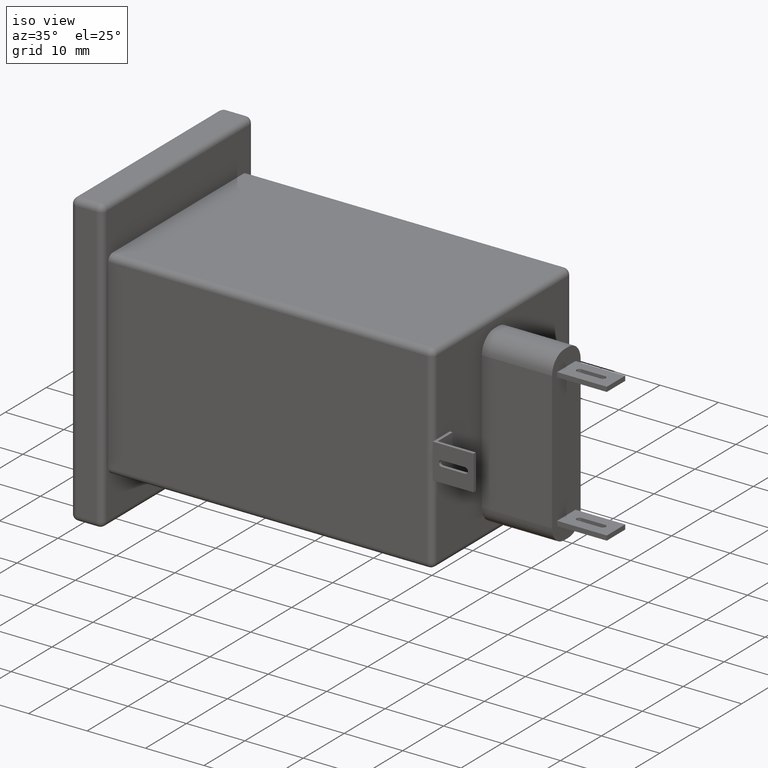
[diagram: clean part render]
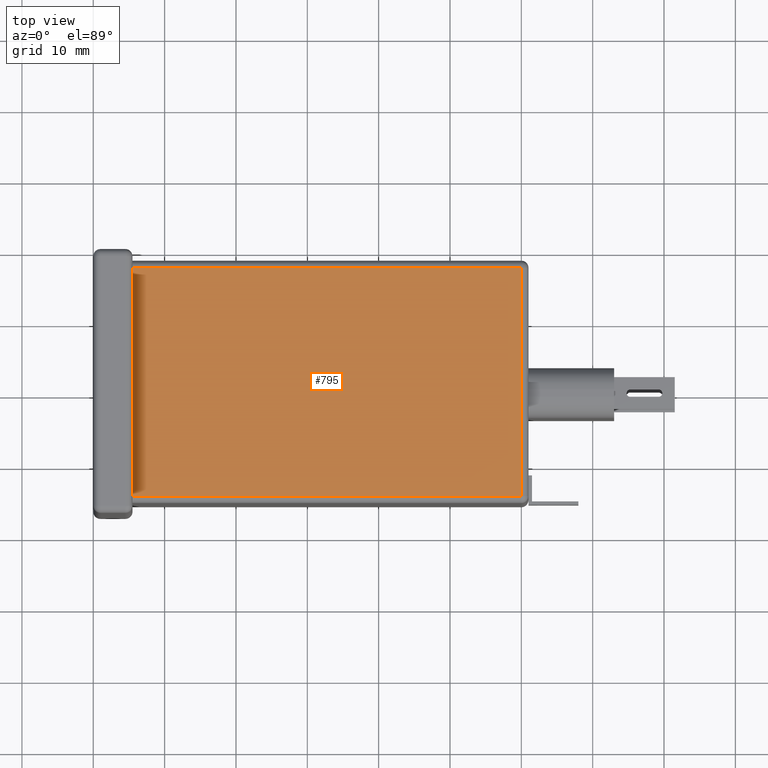
[diagram: tour spotlight — one face highlighted and labeled with its STEP entity id]
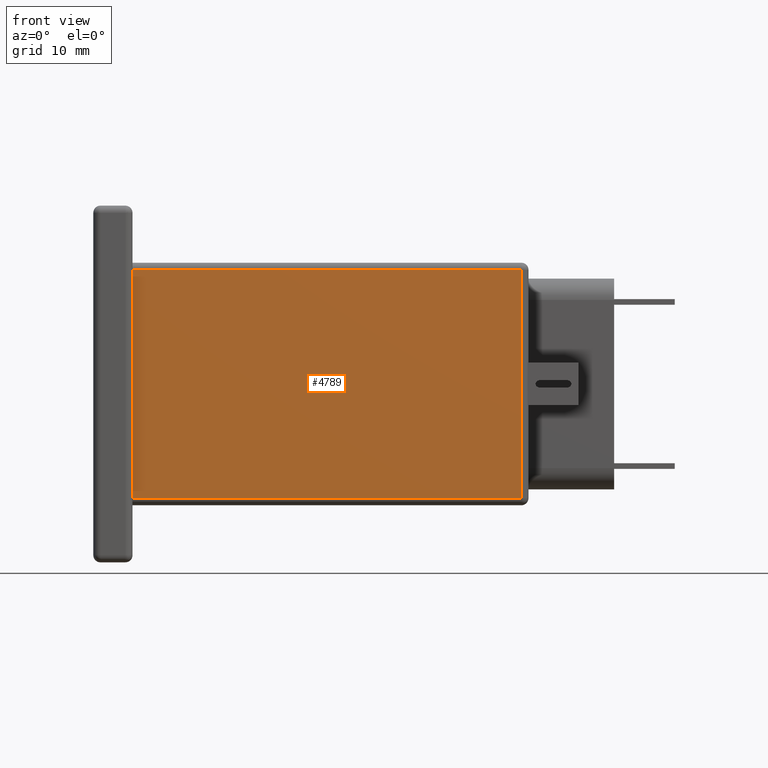
[diagram: tour spotlight — one face highlighted and labeled with its STEP entity id]
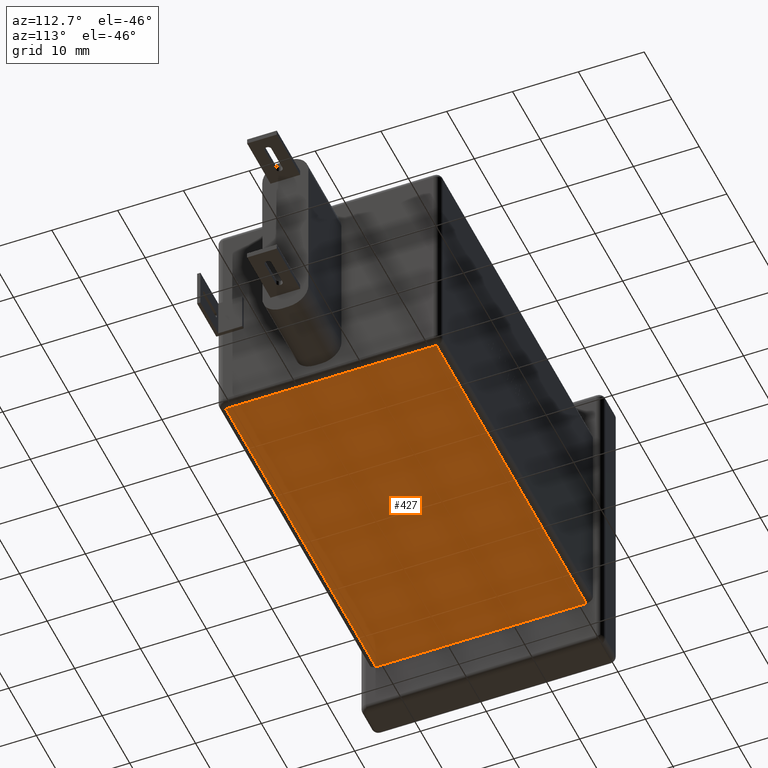
[diagram: tour spotlight — one face highlighted and labeled with its STEP entity id]
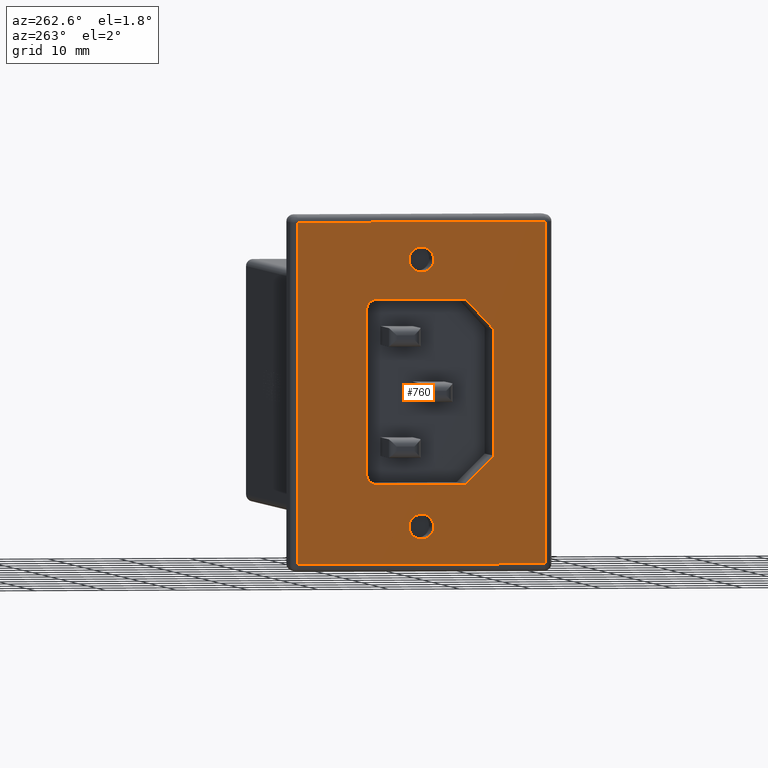
[diagram: tour spotlight — one face highlighted and labeled with its STEP entity id]
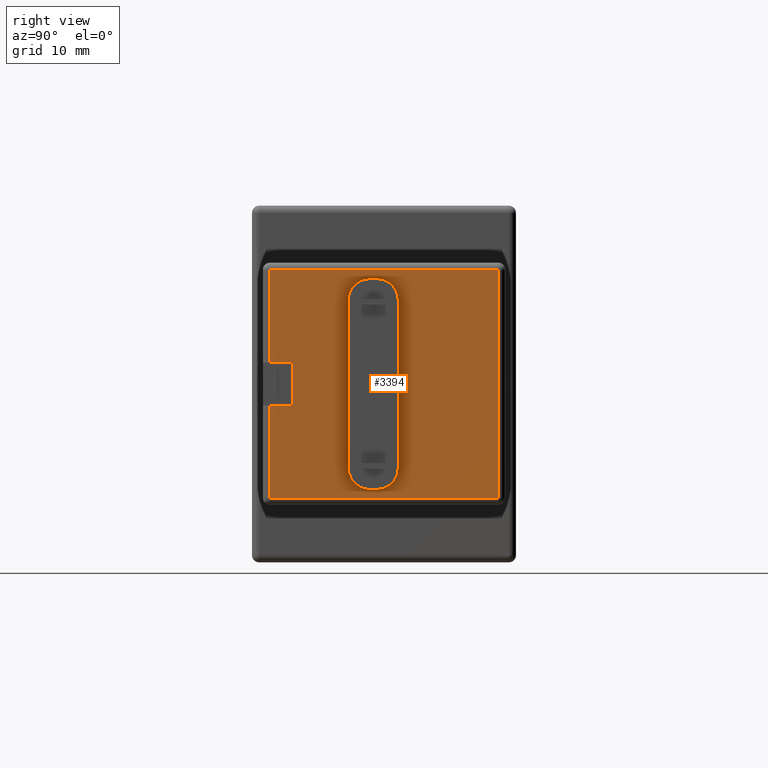
[diagram: tour spotlight — one face highlighted and labeled with its STEP entity id]
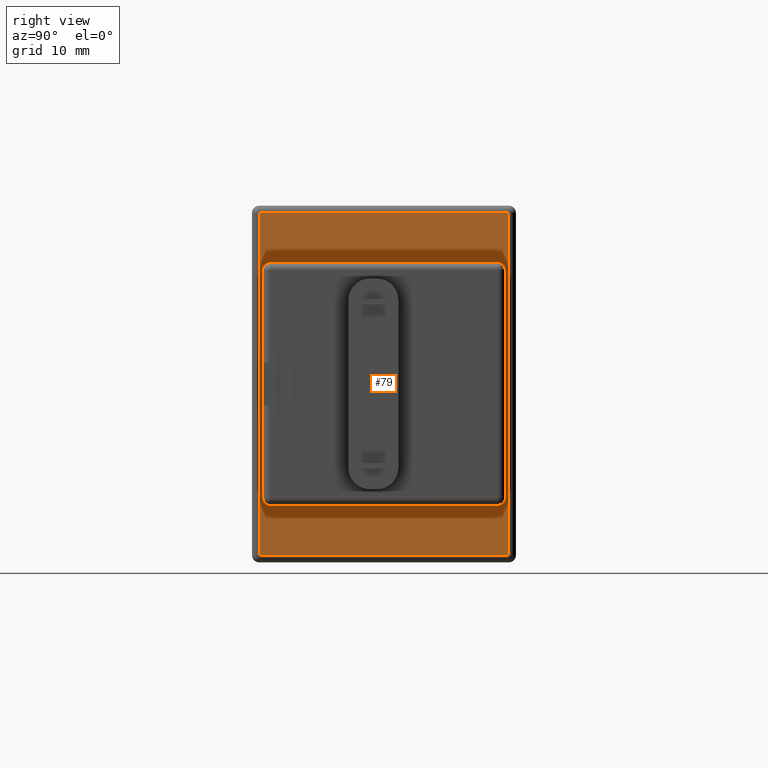
[diagram: tour spotlight — one face highlighted and labeled with its STEP entity id]
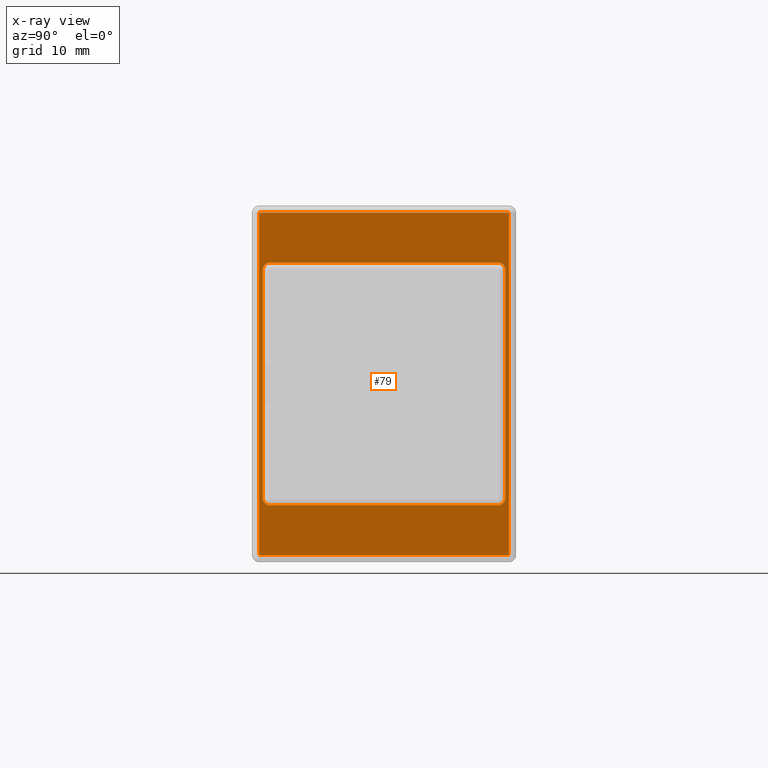
[diagram: x-ray of the same camera — body ghosted, this tour face saturated]
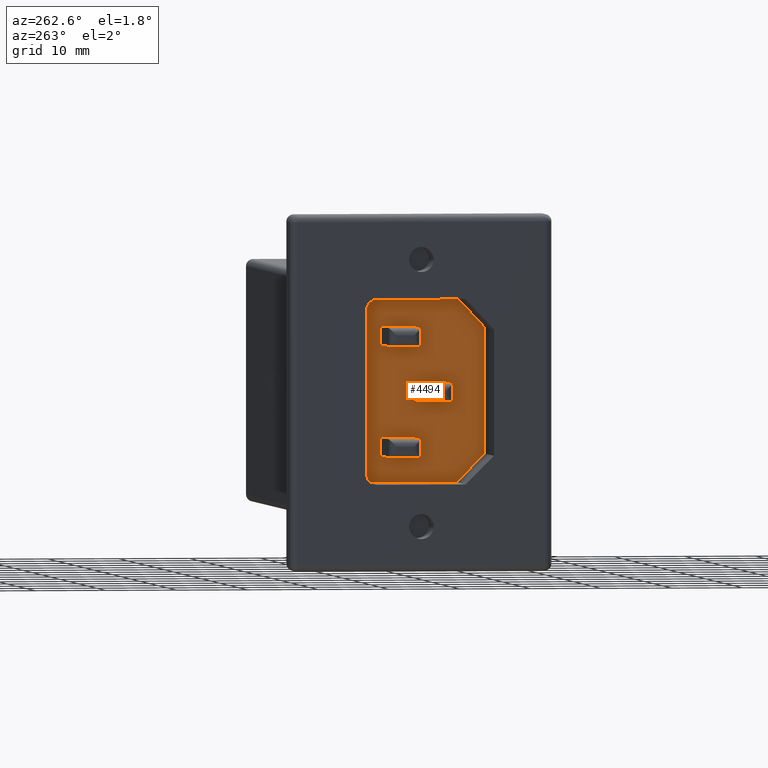
[diagram: tour spotlight — one face highlighted and labeled with its STEP entity id]
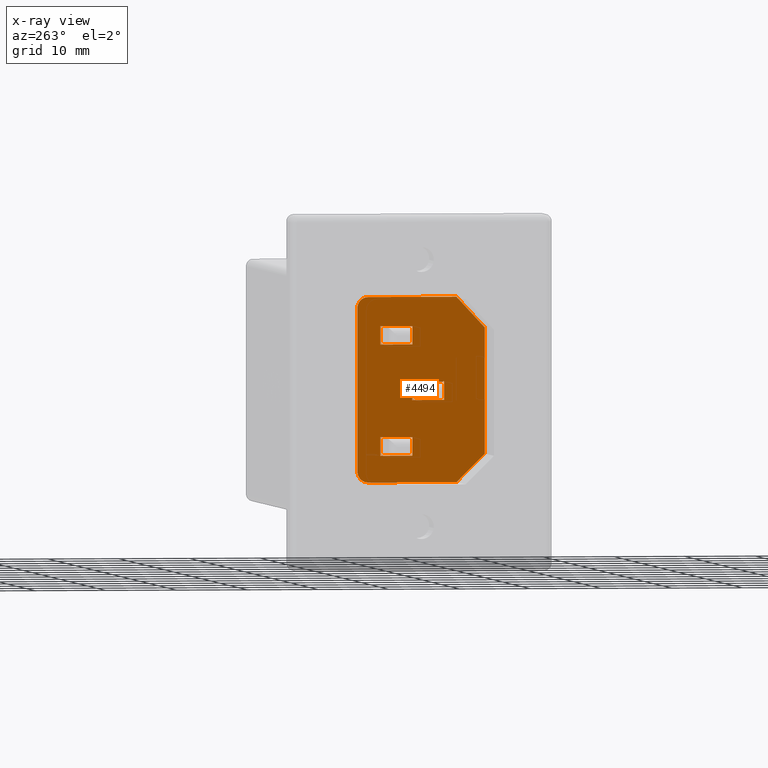
[diagram: x-ray of the same camera — body ghosted, this tour face saturated]
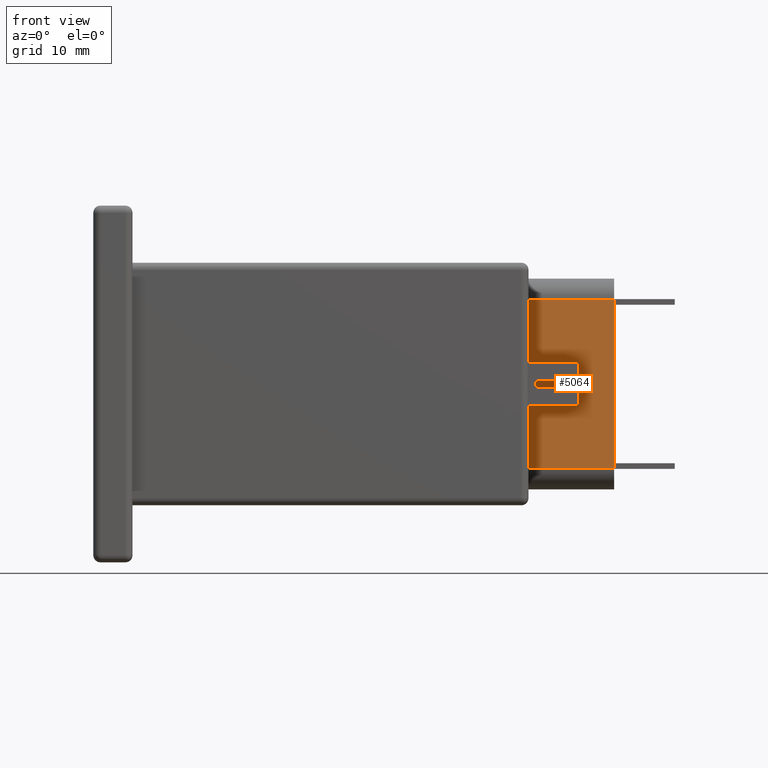
[diagram: tour spotlight — one face highlighted and labeled with its STEP entity id]
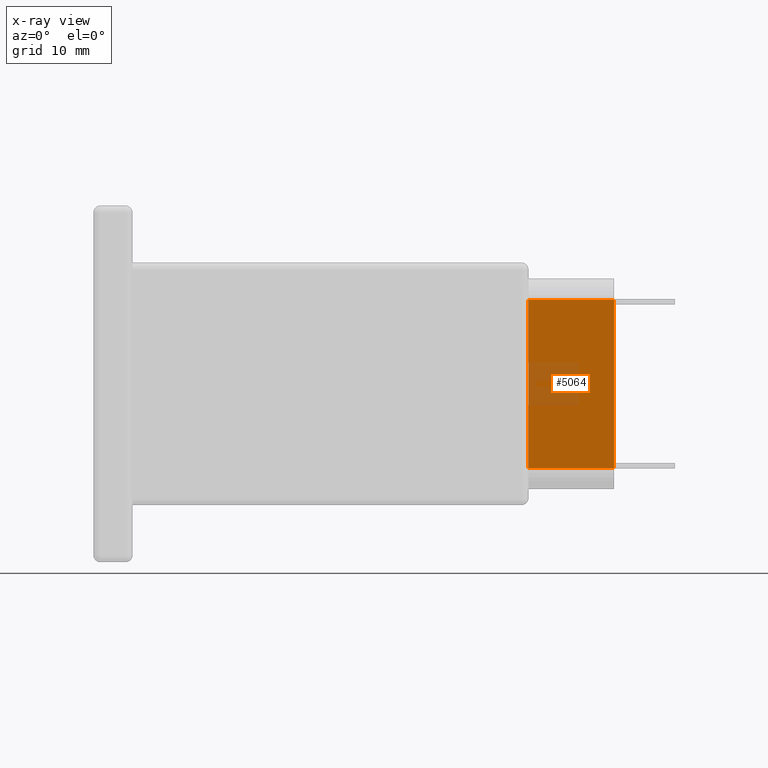
[diagram: x-ray of the same camera — body ghosted, this tour face saturated]
A machine part: a face-by-face anatomy tour. The part has 180 B-rep faces; the first image is the clean iso view, then the 8 largest visible faces are spotlighted one at a time (largest first), each with its STEP entity span.

Face 1 — top view, entity #795. In plain terms, the highlighted planar face has unit normal (0, 0, -1).
Definition (entity closure, byte-faithful):
#142 = LINE ( 'NONE', #2568, #4412 ) ;
#325 = LINE ( 'NONE', #6962, #1560 ) ;
#387 = FACE_OUTER_BOUND ( 'NONE', #5386, .T. ) ;
#452 = VECTOR ( 'NONE', #6741, 1000.000000000000000 ) ;
#795 = ADVANCED_FACE ( 'NONE', ( #387 ), #2618, .F. ) ;
#1560 = VECTOR ( 'NONE', #2034, 1000.000000000000000 ) ;
#2034 = DIRECTION ( 'NONE',  ( 0.0000000000000000000, -1.000000000000000000, -2.040851148208009000E-016 ) ) ;
#2129 = EDGE_CURVE ( 'NONE', #6992, #2928, #5610, .T. ) ;
#2282 = CARTESIAN_POINT ( 'NONE',  ( 5.500000000000000000, -2.500000000000008400, 41.99999999999999300 ) ) ;
#2412 = VECTOR ( 'NONE', #6973, 1000.000000000000000 ) ;
#2568 = CARTESIAN_POINT ( 'NONE',  ( 60.00000000000000000, -1.500000000000008200, 41.99999999999999300 ) ) ;
#2618 = PLANE ( 'NONE',  #6047 ) ;
#2621 = DIRECTION ( 'NONE',  ( -0.0000000000000000000, 1.000000000000000000, 2.040851148208009200E-016 ) ) ;
#2928 = VERTEX_POINT ( 'NONE', #2282 ) ;
#3081 = VERTEX_POINT ( 'NONE', #5910 ) ;
#3643 = DIRECTION ( 'NONE',  ( 0.0000000000000000000, 2.040851148208009200E-016, -1.000000000000000000 ) ) ;
#3936 = EDGE_CURVE ( 'NONE', #3081, #6992, #142, .T. ) ;
#4408 = ORIENTED_EDGE ( 'NONE', *, *, #4617, .T. ) ;
#4412 = VECTOR ( 'NONE', #2621, 1000.000000000000000 ) ;
#4497 = CARTESIAN_POINT ( 'NONE',  ( 60.00000000000000000, -2.500000000000008400, 41.99999999999999300 ) ) ;
#4617 = EDGE_CURVE ( 'NONE', #6499, #3081, #6043, .T. ) ;
#4792 = CARTESIAN_POINT ( 'NONE',  ( 61.00000000000000000, -34.49999999999999300, 41.99999999999998600 ) ) ;
#5386 = EDGE_LOOP ( 'NONE', ( #5813, #4408, #5502, #6572 ) ) ;
#5395 = CARTESIAN_POINT ( 'NONE',  ( 61.00000000000000000, -1.500000000000008200, 41.99999999999999300 ) ) ;
#5502 = ORIENTED_EDGE ( 'NONE', *, *, #3936, .T. ) ;
#5580 = EDGE_CURVE ( 'NONE', #2928, #6499, #325, .T. ) ;
#5610 = LINE ( 'NONE', #6945, #452 ) ;
#5813 = ORIENTED_EDGE ( 'NONE', *, *, #5580, .T. ) ;
#5910 = CARTESIAN_POINT ( 'NONE',  ( 60.00000000000000000, -34.49999999999999300, 41.99999999999998600 ) ) ;
#6043 = LINE ( 'NONE', #4792, #2412 ) ;
#6047 = AXIS2_PLACEMENT_3D ( 'NONE', #5395, #3643, #6373 ) ;
#6210 = CARTESIAN_POINT ( 'NONE',  ( 5.500000000000000000, -34.49999999999999300, 41.99999999999998600 ) ) ;
#6373 = DIRECTION ( 'NONE',  ( 0.0000000000000000000, 1.000000000000000000, 2.040851148208009200E-016 ) ) ;
#6499 = VERTEX_POINT ( 'NONE', #6210 ) ;
#6572 = ORIENTED_EDGE ( 'NONE', *, *, #2129, .T. ) ;
#6741 = DIRECTION ( 'NONE',  ( -1.000000000000000000, 0.0000000000000000000, 0.0000000000000000000 ) ) ;
#6945 = CARTESIAN_POINT ( 'NONE',  ( 61.00000000000000000, -2.500000000000008400, 41.99999999999999300 ) ) ;
#6962 = CARTESIAN_POINT ( 'NONE',  ( 5.500000000000000000, -1.500000000000008200, 41.99999999999999300 ) ) ;
#6973 = DIRECTION ( 'NONE',  ( 1.000000000000000000, -0.0000000000000000000, -0.0000000000000000000 ) ) ;
#6992 = VERTEX_POINT ( 'NONE', #4497 ) ;

Face 2 — front view, entity #4789. In plain terms, the highlighted planar face has unit normal (-0, 1, 0).
Definition (entity closure, byte-faithful):
#86 = VECTOR ( 'NONE', #6377, 1000.000000000000000 ) ;
#155 = CARTESIAN_POINT ( 'NONE',  ( 61.00000000000000000, -35.50000000000000000, 40.99999999999998600 ) ) ;
#170 = VERTEX_POINT ( 'NONE', #3233 ) ;
#300 = CARTESIAN_POINT ( 'NONE',  ( 60.00000000000000000, -35.50000000000000000, 41.99999999999998600 ) ) ;
#456 = DIRECTION ( 'NONE',  ( 1.000000000000000000, -0.0000000000000000000, -0.0000000000000000000 ) ) ;
#673 = VERTEX_POINT ( 'NONE', #1365 ) ;
#1093 = VECTOR ( 'NONE', #456, 1000.000000000000000 ) ;
#1261 = LINE ( 'NONE', #6121, #3254 ) ;
#1365 = CARTESIAN_POINT ( 'NONE',  ( 5.500000000000000000, -35.50000000000000000, 40.99999999999998600 ) ) ;
#1559 = EDGE_CURVE ( 'NONE', #170, #1577, #5881, .T. ) ;
#1577 = VERTEX_POINT ( 'NONE', #5423 ) ;
#1644 = ORIENTED_EDGE ( 'NONE', *, *, #1559, .T. ) ;
#1651 = LINE ( 'NONE', #300, #4347 ) ;
#1778 = EDGE_CURVE ( 'NONE', #673, #170, #1261, .T. ) ;
#1833 = CARTESIAN_POINT ( 'NONE',  ( 60.00000000000000000, -35.50000000000000000, 40.99999999999998600 ) ) ;
#3233 = CARTESIAN_POINT ( 'NONE',  ( 5.500000000000000000, -35.50000000000000000, 8.999999999999987600 ) ) ;
#3254 = VECTOR ( 'NONE', #5061, 1000.000000000000000 ) ;
#3267 = DIRECTION ( 'NONE',  ( 0.0000000000000000000, -0.0000000000000000000, 1.000000000000000000 ) ) ;
#3573 = ORIENTED_EDGE ( 'NONE', *, *, #5930, .T. ) ;
#4347 = VECTOR ( 'NONE', #6367, 1000.000000000000000 ) ;
#4373 = ORIENTED_EDGE ( 'NONE', *, *, #6192, .T. ) ;
#4789 = ADVANCED_FACE ( 'NONE', ( #5090 ), #4995, .F. ) ;
#4934 = VERTEX_POINT ( 'NONE', #1833 ) ;
#4995 = PLANE ( 'NONE',  #7051 ) ;
#5034 = LINE ( 'NONE', #155, #86 ) ;
#5061 = DIRECTION ( 'NONE',  ( 0.0000000000000000000, 0.0000000000000000000, -1.000000000000000000 ) ) ;
#5090 = FACE_OUTER_BOUND ( 'NONE', #6309, .T. ) ;
#5423 = CARTESIAN_POINT ( 'NONE',  ( 60.00000000000000000, -35.50000000000000000, 8.999999999999987600 ) ) ;
#5493 = CARTESIAN_POINT ( 'NONE',  ( 61.00000000000000000, -35.50000000000000000, 8.999999999999987600 ) ) ;
#5523 = CARTESIAN_POINT ( 'NONE',  ( 61.00000000000000000, -35.50000000000000000, 41.99999999999998600 ) ) ;
#5881 = LINE ( 'NONE', #5493, #1093 ) ;
#5930 = EDGE_CURVE ( 'NONE', #4934, #673, #5034, .T. ) ;
#6036 = DIRECTION ( 'NONE',  ( -0.0000000000000000000, 1.000000000000000000, 0.0000000000000000000 ) ) ;
#6121 = CARTESIAN_POINT ( 'NONE',  ( 5.500000000000000000, -35.50000000000000000, 41.99999999999998600 ) ) ;
#6192 = EDGE_CURVE ( 'NONE', #1577, #4934, #1651, .T. ) ;
#6309 = EDGE_LOOP ( 'NONE', ( #6676, #1644, #4373, #3573 ) ) ;
#6367 = DIRECTION ( 'NONE',  ( -0.0000000000000000000, -0.0000000000000000000, 1.000000000000000000 ) ) ;
#6377 = DIRECTION ( 'NONE',  ( -1.000000000000000000, 0.0000000000000000000, 0.0000000000000000000 ) ) ;
#6676 = ORIENTED_EDGE ( 'NONE', *, *, #1778, .T. ) ;
#7051 = AXIS2_PLACEMENT_3D ( 'NONE', #5523, #6036, #3267 ) ;

Face 3 — auxiliary view, entity #427. In plain terms, the highlighted planar face has unit normal (0, -0, 1).
Definition (entity closure, byte-faithful):
#3 = LINE ( 'NONE', #229, #4270 ) ;
#225 = AXIS2_PLACEMENT_3D ( 'NONE', #2708, #1496, #364 ) ;
#229 = CARTESIAN_POINT ( 'NONE',  ( 61.00000000000000000, -34.49999999999999300, 7.999999999999986700 ) ) ;
#364 = DIRECTION ( 'NONE',  ( 0.0000000000000000000, -1.000000000000000000, -1.020425574104004500E-016 ) ) ;
#427 = ADVANCED_FACE ( 'NONE', ( #5891 ), #2157, .F. ) ;
#1230 = VERTEX_POINT ( 'NONE', #5707 ) ;
#1496 = DIRECTION ( 'NONE',  ( 0.0000000000000000000, -1.020425574104004500E-016, 1.000000000000000000 ) ) ;
#1691 = DIRECTION ( 'NONE',  ( 1.000000000000000000, -0.0000000000000000000, -0.0000000000000000000 ) ) ;
#1693 = ORIENTED_EDGE ( 'NONE', *, *, #2852, .T. ) ;
#1884 = ORIENTED_EDGE ( 'NONE', *, *, #6789, .T. ) ;
#2077 = DIRECTION ( 'NONE',  ( -0.0000000000000000000, -1.000000000000000000, -1.020425574104004500E-016 ) ) ;
#2157 = PLANE ( 'NONE',  #225 ) ;
#2191 = EDGE_LOOP ( 'NONE', ( #4578, #5361, #1884, #1693 ) ) ;
#2428 = EDGE_CURVE ( 'NONE', #2656, #6681, #3, .T. ) ;
#2627 = VECTOR ( 'NONE', #2077, 1000.000000000000000 ) ;
#2656 = VERTEX_POINT ( 'NONE', #5586 ) ;
#2708 = CARTESIAN_POINT ( 'NONE',  ( 61.00000000000000000, -1.500000000000001300, 7.999999999999989300 ) ) ;
#2852 = EDGE_CURVE ( 'NONE', #3964, #1230, #4474, .T. ) ;
#3006 = VECTOR ( 'NONE', #6602, 1000.000000000000000 ) ;
#3111 = EDGE_CURVE ( 'NONE', #1230, #2656, #4970, .T. ) ;
#3173 = DIRECTION ( 'NONE',  ( -1.000000000000000000, 0.0000000000000000000, 0.0000000000000000000 ) ) ;
#3708 = CARTESIAN_POINT ( 'NONE',  ( 60.00000000000000000, -35.50000000000000000, 7.999999999999986700 ) ) ;
#3868 = LINE ( 'NONE', #7157, #3006 ) ;
#3964 = VERTEX_POINT ( 'NONE', #6506 ) ;
#4270 = VECTOR ( 'NONE', #3173, 1000.000000000000000 ) ;
#4460 = CARTESIAN_POINT ( 'NONE',  ( 61.00000000000000000, -2.500000000000001300, 7.999999999999989300 ) ) ;
#4474 = LINE ( 'NONE', #4460, #6346 ) ;
#4578 = ORIENTED_EDGE ( 'NONE', *, *, #3111, .T. ) ;
#4970 = LINE ( 'NONE', #3708, #2627 ) ;
#5361 = ORIENTED_EDGE ( 'NONE', *, *, #2428, .T. ) ;
#5586 = CARTESIAN_POINT ( 'NONE',  ( 60.00000000000000000, -34.49999999999999300, 7.999999999999986700 ) ) ;
#5707 = CARTESIAN_POINT ( 'NONE',  ( 60.00000000000000000, -2.500000000000001300, 7.999999999999989300 ) ) ;
#5891 = FACE_OUTER_BOUND ( 'NONE', #2191, .T. ) ;
#6346 = VECTOR ( 'NONE', #1691, 1000.000000000000000 ) ;
#6444 = CARTESIAN_POINT ( 'NONE',  ( 5.500000000000000000, -34.49999999999999300, 7.999999999999986700 ) ) ;
#6506 = CARTESIAN_POINT ( 'NONE',  ( 5.500000000000000000, -2.500000000000001300, 7.999999999999989300 ) ) ;
#6602 = DIRECTION ( 'NONE',  ( -0.0000000000000000000, 1.000000000000000000, 1.020425574104004200E-016 ) ) ;
#6681 = VERTEX_POINT ( 'NONE', #6444 ) ;
#6789 = EDGE_CURVE ( 'NONE', #6681, #3964, #3868, .T. ) ;
#7157 = CARTESIAN_POINT ( 'NONE',  ( 5.500000000000000000, -1.500000000000001300, 7.999999999999989300 ) ) ;

Face 4 — auxiliary view, entity #760. In plain terms, the highlighted planar face has unit normal (-1, -0, 0).
Definition (entity closure, byte-faithful):
#35 = CARTESIAN_POINT ( 'NONE',  ( 0.0000000000000000000, -24.74999999999999600, 38.16247311032623900 ) ) ;
#73 = DIRECTION ( 'NONE',  ( -0.0000000000000000000, -1.000000000000000000, -1.224646799147353500E-016 ) ) ;
#164 = CARTESIAN_POINT ( 'NONE',  ( 0.0000000000000000000, -1.000000000000000000, 0.0000000000000000000 ) ) ;
#205 = LINE ( 'NONE', #5500, #1791 ) ;
#223 = EDGE_CURVE ( 'NONE', #5898, #4892, #1984, .T. ) ;
#242 = ORIENTED_EDGE ( 'NONE', *, *, #2298, .F. ) ;
#254 = VECTOR ( 'NONE', #73, 1000.000000000000000 ) ;
#287 = VERTEX_POINT ( 'NONE', #4643 ) ;
#288 = VERTEX_POINT ( 'NONE', #35 ) ;
#394 = VERTEX_POINT ( 'NONE', #5255 ) ;
#415 = VECTOR ( 'NONE', #5168, 1000.000000000000000 ) ;
#425 = LINE ( 'NONE', #3396, #254 ) ;
#463 = CARTESIAN_POINT ( 'NONE',  ( 0.0000000000000000000, -36.00000000000000700, 48.99999999999998600 ) ) ;
#509 = DIRECTION ( 'NONE',  ( 0.0000000000000000000, 0.0000000000000000000, 1.000000000000000000 ) ) ;
#596 = CARTESIAN_POINT ( 'NONE',  ( 0.0000000000000000000, -24.75000000000000000, 12.16247311032625900 ) ) ;
#671 = EDGE_CURVE ( 'NONE', #4356, #5898, #6474, .T. ) ;
#683 = CARTESIAN_POINT ( 'NONE',  ( 0.0000000000000000000, -10.75882513150841800, 13.49999999999999600 ) ) ;
#686 = AXIS2_PLACEMENT_3D ( 'NONE', #6329, #5293, #4149 ) ;
#760 = ADVANCED_FACE ( 'NONE', ( #6635, #3526, #6382, #4924 ), #6881, .T. ) ;
#788 = DIRECTION ( 'NONE',  ( 0.0000000000000000000, 0.0000000000000000000, 1.000000000000000000 ) ) ;
#799 = LINE ( 'NONE', #2188, #979 ) ;
#931 = EDGE_CURVE ( 'NONE', #3828, #5238, #2162, .T. ) ;
#979 = VECTOR ( 'NONE', #509, 1000.000000000000000 ) ;
#1196 = EDGE_LOOP ( 'NONE', ( #3298, #1397, #6214, #4750 ) ) ;
#1377 = CARTESIAN_POINT ( 'NONE',  ( 0.0000000000000000000, -18.50000000000000000, 6.273196118322978500 ) ) ;
#1397 = ORIENTED_EDGE ( 'NONE', *, *, #3589, .T. ) ;
#1520 = CARTESIAN_POINT ( 'NONE',  ( 0.0000000000000000000, -18.50000000000000000, 8.023196118322978500 ) ) ;
#1545 = ORIENTED_EDGE ( 'NONE', *, *, #5167, .F. ) ;
#1554 = CARTESIAN_POINT ( 'NONE',  ( 0.0000000000000000000, -12.25000000000001100, 12.16247311032625900 ) ) ;
#1648 = DIRECTION ( 'NONE',  ( -0.0000000000000000000, 0.6789893572505011400, 0.7341481136259571100 ) ) ;
#1696 = DIRECTION ( 'NONE',  ( -0.0000000000000000000, -0.0000000000000000000, -1.000000000000000000 ) ) ;
#1755 = LINE ( 'NONE', #3482, #415 ) ;
#1791 = VECTOR ( 'NONE', #2769, 1000.000000000000000 ) ;
#1984 = LINE ( 'NONE', #3945, #5646 ) ;
#1998 = CARTESIAN_POINT ( 'NONE',  ( 0.0000000000000000000, -1.000000000000000000, 0.9999999999999997800 ) ) ;
#2005 = VERTEX_POINT ( 'NONE', #596 ) ;
#2006 = CARTESIAN_POINT ( 'NONE',  ( 0.0000000000000000000, -18.50000000000000400, 38.16247311032623900 ) ) ;
#2162 = CIRCLE ( 'NONE', #5918, 1.749999999999999800 ) ;
#2164 = VERTEX_POINT ( 'NONE', #2942 ) ;
#2181 = CIRCLE ( 'NONE', #6014, 1.750000000000001600 ) ;
#2188 = CARTESIAN_POINT ( 'NONE',  ( 0.0000000000000000000, -28.75000000000001800, 24.99999999999998900 ) ) ;
#2214 = CARTESIAN_POINT ( 'NONE',  ( 0.0000000000000000000, -28.75000000000001800, 16.16247311032627100 ) ) ;
#2218 = LINE ( 'NONE', #7055, #6023 ) ;
#2269 = ORIENTED_EDGE ( 'NONE', *, *, #671, .F. ) ;
#2298 = EDGE_CURVE ( 'NONE', #5117, #2164, #2181, .T. ) ;
#2313 = DIRECTION ( 'NONE',  ( -1.000000000000000000, 0.0000000000000000000, 0.0000000000000000000 ) ) ;
#2321 = AXIS2_PLACEMENT_3D ( 'NONE', #4811, #3734, #4267 ) ;
#2449 = DIRECTION ( 'NONE',  ( -1.000000000000000000, 0.0000000000000000000, 0.0000000000000000000 ) ) ;
#2482 = ORIENTED_EDGE ( 'NONE', *, *, #5440, .F. ) ;
#2498 = VECTOR ( 'NONE', #1696, 1000.000000000000000 ) ;
#2566 = DIRECTION ( 'NONE',  ( -1.000000000000000000, -0.0000000000000000000, 0.0000000000000000000 ) ) ;
#2663 = DIRECTION ( 'NONE',  ( 0.0000000000000000000, -0.7071067811865479100, 0.7071067811865472400 ) ) ;
#2767 = VERTEX_POINT ( 'NONE', #3835 ) ;
#2769 = DIRECTION ( 'NONE',  ( -0.0000000000000000000, 1.000000000000000000, 1.875376730785737500E-016 ) ) ;
#2942 = CARTESIAN_POINT ( 'NONE',  ( 0.0000000000000000000, -18.49999999999999300, 45.47680388167701400 ) ) ;
#2968 = EDGE_CURVE ( 'NONE', #2767, #6866, #7119, .T. ) ;
#3077 = DIRECTION ( 'NONE',  ( 0.0000000000000000000, 0.0000000000000000000, -1.000000000000000000 ) ) ;
#3100 = EDGE_CURVE ( 'NONE', #2164, #5117, #3941, .T. ) ;
#3122 = VECTOR ( 'NONE', #6978, 1000.000000000000000 ) ;
#3298 = ORIENTED_EDGE ( 'NONE', *, *, #4173, .T. ) ;
#3396 = CARTESIAN_POINT ( 'NONE',  ( 0.0000000000000000000, -37.00000000000000000, 0.9999999999999954500 ) ) ;
#3397 = CARTESIAN_POINT ( 'NONE',  ( 0.0000000000000000000, -12.25000000000001100, 13.66247311032626000 ) ) ;
#3482 = CARTESIAN_POINT ( 'NONE',  ( 0.0000000000000000000, -18.50000000000000700, 12.16247311032625900 ) ) ;
#3506 = VERTEX_POINT ( 'NONE', #1554 ) ;
#3526 = FACE_BOUND ( 'NONE', #4929, .T. ) ;
#3571 = ORIENTED_EDGE ( 'NONE', *, *, #5306, .F. ) ;
#3589 = EDGE_CURVE ( 'NONE', #6713, #2767, #425, .T. ) ;
#3603 = LINE ( 'NONE', #164, #2498 ) ;
#3675 = AXIS2_PLACEMENT_3D ( 'NONE', #3397, #2313, #6753 ) ;
#3734 = DIRECTION ( 'NONE',  ( -1.000000000000000000, 0.0000000000000000000, 0.0000000000000000000 ) ) ;
#3828 = VERTEX_POINT ( 'NONE', #6913 ) ;
#3835 = CARTESIAN_POINT ( 'NONE',  ( 0.0000000000000000000, -36.00000000000000000, 0.9999999999999956700 ) ) ;
#3941 = CIRCLE ( 'NONE', #2321, 1.750000000000001600 ) ;
#3945 = CARTESIAN_POINT ( 'NONE',  ( 0.0000000000000000000, -10.75882513150841800, 24.99999999999998900 ) ) ;
#3971 = LINE ( 'NONE', #7149, #4499 ) ;
#4119 = EDGE_CURVE ( 'NONE', #394, #288, #3971, .T. ) ;
#4149 = DIRECTION ( 'NONE',  ( 0.0000000000000000000, 0.0000000000000000000, 1.000000000000000000 ) ) ;
#4173 = EDGE_CURVE ( 'NONE', #287, #6713, #3603, .T. ) ;
#4190 = ORIENTED_EDGE ( 'NONE', *, *, #6046, .F. ) ;
#4267 = DIRECTION ( 'NONE',  ( 0.0000000000000000000, 0.0000000000000000000, -1.000000000000000000 ) ) ;
#4282 = CARTESIAN_POINT ( 'NONE',  ( 0.0000000000000000000, -18.49999999999999300, 41.97680388167700700 ) ) ;
#4356 = VERTEX_POINT ( 'NONE', #4508 ) ;
#4482 = DIRECTION ( 'NONE',  ( 0.0000000000000000000, 0.0000000000000000000, -1.000000000000000000 ) ) ;
#4499 = VECTOR ( 'NONE', #1648, 1000.000000000000100 ) ;
#4508 = CARTESIAN_POINT ( 'NONE',  ( 0.0000000000000000000, -12.25000000000000700, 38.16247311032623900 ) ) ;
#4607 = ORIENTED_EDGE ( 'NONE', *, *, #4884, .F. ) ;
#4643 = CARTESIAN_POINT ( 'NONE',  ( 0.0000000000000000000, -1.000000000000000000, 48.99999999999999300 ) ) ;
#4652 = CIRCLE ( 'NONE', #3675, 1.500000000000001300 ) ;
#4697 = CIRCLE ( 'NONE', #5243, 1.749999999999999800 ) ;
#4749 = CARTESIAN_POINT ( 'NONE',  ( 0.0000000000000000000, 0.0000000000000000000, 0.0000000000000000000 ) ) ;
#4750 = ORIENTED_EDGE ( 'NONE', *, *, #4802, .T. ) ;
#4802 = EDGE_CURVE ( 'NONE', #6866, #287, #205, .T. ) ;
#4811 = CARTESIAN_POINT ( 'NONE',  ( 0.0000000000000000000, -18.49999999999999300, 43.72680388167700700 ) ) ;
#4838 = CARTESIAN_POINT ( 'NONE',  ( 0.0000000000000000000, -18.50000000000000000, 6.273196118322978500 ) ) ;
#4884 = EDGE_CURVE ( 'NONE', #4892, #3506, #4652, .T. ) ;
#4892 = VERTEX_POINT ( 'NONE', #683 ) ;
#4924 = FACE_BOUND ( 'NONE', #5452, .T. ) ;
#4929 = EDGE_LOOP ( 'NONE', ( #6093, #242 ) ) ;
#5073 = AXIS2_PLACEMENT_3D ( 'NONE', #4749, #2566, #7013 ) ;
#5079 = DIRECTION ( 'NONE',  ( -0.0000000000000000000, -1.387778780781445900E-016, 1.000000000000000000 ) ) ;
#5117 = VERTEX_POINT ( 'NONE', #4282 ) ;
#5167 = EDGE_CURVE ( 'NONE', #2005, #7064, #2218, .T. ) ;
#5168 = DIRECTION ( 'NONE',  ( 0.0000000000000000000, -1.000000000000000000, 0.0000000000000000000 ) ) ;
#5238 = VERTEX_POINT ( 'NONE', #1520 ) ;
#5243 = AXIS2_PLACEMENT_3D ( 'NONE', #4838, #7031, #5417 ) ;
#5255 = CARTESIAN_POINT ( 'NONE',  ( 0.0000000000000000000, -28.75000000000001800, 33.83752688967370400 ) ) ;
#5293 = DIRECTION ( 'NONE',  ( -1.000000000000000000, 0.0000000000000000000, 0.0000000000000000000 ) ) ;
#5306 = EDGE_CURVE ( 'NONE', #7064, #394, #799, .T. ) ;
#5417 = DIRECTION ( 'NONE',  ( 0.0000000000000000000, 0.0000000000000000000, 1.000000000000000000 ) ) ;
#5440 = EDGE_CURVE ( 'NONE', #3506, #2005, #1755, .T. ) ;
#5452 = EDGE_LOOP ( 'NONE', ( #6431, #3571, #1545, #2482, #4607, #6269, #2269, #5932 ) ) ;
#5484 = LINE ( 'NONE', #2006, #3122 ) ;
#5497 = EDGE_LOOP ( 'NONE', ( #4190, #6127 ) ) ;
#5500 = CARTESIAN_POINT ( 'NONE',  ( 0.0000000000000000000, 1.875376730785739200E-016, 48.99999999999999300 ) ) ;
#5646 = VECTOR ( 'NONE', #4482, 1000.000000000000000 ) ;
#5676 = VECTOR ( 'NONE', #5079, 1000.000000000000000 ) ;
#5748 = CARTESIAN_POINT ( 'NONE',  ( 0.0000000000000000000, -10.75882513150841500, 36.49999999999998600 ) ) ;
#5868 = DIRECTION ( 'NONE',  ( -1.000000000000000000, 0.0000000000000000000, 0.0000000000000000000 ) ) ;
#5898 = VERTEX_POINT ( 'NONE', #5748 ) ;
#5918 = AXIS2_PLACEMENT_3D ( 'NONE', #1377, #2449, #788 ) ;
#5932 = ORIENTED_EDGE ( 'NONE', *, *, #6221, .F. ) ;
#6014 = AXIS2_PLACEMENT_3D ( 'NONE', #6414, #5868, #3077 ) ;
#6023 = VECTOR ( 'NONE', #2663, 1000.000000000000000 ) ;
#6046 = EDGE_CURVE ( 'NONE', #5238, #3828, #4697, .T. ) ;
#6093 = ORIENTED_EDGE ( 'NONE', *, *, #3100, .F. ) ;
#6127 = ORIENTED_EDGE ( 'NONE', *, *, #931, .F. ) ;
#6214 = ORIENTED_EDGE ( 'NONE', *, *, #2968, .T. ) ;
#6221 = EDGE_CURVE ( 'NONE', #288, #4356, #5484, .T. ) ;
#6269 = ORIENTED_EDGE ( 'NONE', *, *, #223, .F. ) ;
#6329 = CARTESIAN_POINT ( 'NONE',  ( 0.0000000000000000000, -12.25000000000000700, 36.66247311032623200 ) ) ;
#6382 = FACE_BOUND ( 'NONE', #5497, .T. ) ;
#6414 = CARTESIAN_POINT ( 'NONE',  ( 0.0000000000000000000, -18.49999999999999300, 43.72680388167700700 ) ) ;
#6431 = ORIENTED_EDGE ( 'NONE', *, *, #4119, .F. ) ;
#6474 = CIRCLE ( 'NONE', #686, 1.500000000000001300 ) ;
#6635 = FACE_OUTER_BOUND ( 'NONE', #1196, .T. ) ;
#6685 = CARTESIAN_POINT ( 'NONE',  ( 0.0000000000000000000, -36.00000000000000700, 49.99999999999998600 ) ) ;
#6713 = VERTEX_POINT ( 'NONE', #1998 ) ;
#6753 = DIRECTION ( 'NONE',  ( 0.0000000000000000000, 0.0000000000000000000, 1.000000000000000000 ) ) ;
#6866 = VERTEX_POINT ( 'NONE', #463 ) ;
#6881 = PLANE ( 'NONE',  #5073 ) ;
#6913 = CARTESIAN_POINT ( 'NONE',  ( 0.0000000000000000000, -18.50000000000000000, 4.523196118322977600 ) ) ;
#6978 = DIRECTION ( 'NONE',  ( 0.0000000000000000000, 1.000000000000000000, 0.0000000000000000000 ) ) ;
#7013 = DIRECTION ( 'NONE',  ( 0.0000000000000000000, 0.0000000000000000000, 1.000000000000000000 ) ) ;
#7031 = DIRECTION ( 'NONE',  ( -1.000000000000000000, 0.0000000000000000000, 0.0000000000000000000 ) ) ;
#7055 = CARTESIAN_POINT ( 'NONE',  ( 0.0000000000000000000, -24.75000000000000000, 12.16247311032625900 ) ) ;
#7064 = VERTEX_POINT ( 'NONE', #2214 ) ;
#7119 = LINE ( 'NONE', #6685, #5676 ) ;
#7149 = CARTESIAN_POINT ( 'NONE',  ( 0.0000000000000000000, -24.74999999999999600, 38.16247311032623200 ) ) ;

Face 5 — right view, entity #3394. In plain terms, the highlighted planar face has unit normal (1, 0, 0).
Definition (entity closure, byte-faithful):
#38 = CARTESIAN_POINT ( 'NONE',  ( 61.00000000000000000, -16.50000000000000000, 10.22885790081624300 ) ) ;
#50 = VECTOR ( 'NONE', #2237, 1000.000000000000000 ) ;
#56 = EDGE_CURVE ( 'NONE', #6492, #6911, #6145, .T. ) ;
#84 = LINE ( 'NONE', #5831, #6579 ) ;
#116 = VECTOR ( 'NONE', #3392, 1000.000000000000000 ) ;
#219 = LINE ( 'NONE', #1326, #3008 ) ;
#249 = CARTESIAN_POINT ( 'NONE',  ( 61.00000000000000000, -16.50000000000000000, 13.22885790081624100 ) ) ;
#283 = LINE ( 'NONE', #1795, #5694 ) ;
#286 = LINE ( 'NONE', #1148, #50 ) ;
#469 = EDGE_LOOP ( 'NONE', ( #5333, #6366, #649, #6412, #1757, #6364, #6787, #2197 ) ) ;
#542 = VECTOR ( 'NONE', #5753, 1000.000000000000000 ) ;
#564 = ORIENTED_EDGE ( 'NONE', *, *, #998, .T. ) ;
#574 = VERTEX_POINT ( 'NONE', #3460 ) ;
#589 = CARTESIAN_POINT ( 'NONE',  ( 61.00000000000000000, -19.50000000000000000, 13.22885790081624100 ) ) ;
#649 = ORIENTED_EDGE ( 'NONE', *, *, #2829, .T. ) ;
#651 = CARTESIAN_POINT ( 'NONE',  ( 61.00000000000000000, -19.50000000000000000, 10.22885790081624300 ) ) ;
#752 = LINE ( 'NONE', #4128, #1996 ) ;
#873 = CARTESIAN_POINT ( 'NONE',  ( 61.00000000000000000, -20.50000000000000000, 36.77114209918373400 ) ) ;
#934 = AXIS2_PLACEMENT_3D ( 'NONE', #589, #4972, #3852 ) ;
#993 = CARTESIAN_POINT ( 'NONE',  ( 61.00000000000000000, -2.500000000000008400, 40.99999999999999300 ) ) ;
#998 = EDGE_CURVE ( 'NONE', #4324, #6767, #3719, .T. ) ;
#1036 = CARTESIAN_POINT ( 'NONE',  ( 61.00000000000000000, -16.50000000000000000, 39.77114209918374100 ) ) ;
#1049 = DIRECTION ( 'NONE',  ( 0.0000000000000000000, -2.040851148208008500E-016, 1.000000000000000000 ) ) ;
#1060 = EDGE_CURVE ( 'NONE', #2423, #5393, #7178, .T. ) ;
#1102 = DIRECTION ( 'NONE',  ( -1.000000000000000000, -0.0000000000000000000, -0.0000000000000000000 ) ) ;
#1125 = DIRECTION ( 'NONE',  ( 0.0000000000000000000, 0.0000000000000000000, -1.000000000000000000 ) ) ;
#1148 = CARTESIAN_POINT ( 'NONE',  ( 61.00000000000000000, -34.49999999999999300, 7.999999999999986700 ) ) ;
#1193 = VECTOR ( 'NONE', #2634, 1000.000000000000000 ) ;
#1194 = ORIENTED_EDGE ( 'NONE', *, *, #7025, .F. ) ;
#1208 = AXIS2_PLACEMENT_3D ( 'NONE', #873, #4239, #3803 ) ;
#1239 = LINE ( 'NONE', #5974, #6100 ) ;
#1271 = DIRECTION ( 'NONE',  ( 0.0000000000000000000, 0.0000000000000000000, -1.000000000000000000 ) ) ;
#1276 = CARTESIAN_POINT ( 'NONE',  ( 61.00000000000000000, -31.35436068777384800, 21.99999999999999600 ) ) ;
#1326 = CARTESIAN_POINT ( 'NONE',  ( 61.00000000000000000, -31.35436068777384800, 27.99999999999999300 ) ) ;
#1514 = ORIENTED_EDGE ( 'NONE', *, *, #5846, .F. ) ;
#1566 = VERTEX_POINT ( 'NONE', #2134 ) ;
#1742 = DIRECTION ( 'NONE',  ( 0.0000000000000000000, 0.0000000000000000000, 1.000000000000000000 ) ) ;
#1757 = ORIENTED_EDGE ( 'NONE', *, *, #2194, .T. ) ;
#1795 = CARTESIAN_POINT ( 'NONE',  ( 61.00000000000000000, -16.50000000000000000, 39.77114209918374100 ) ) ;
#1918 = EDGE_CURVE ( 'NONE', #2423, #574, #283, .T. ) ;
#1996 = VECTOR ( 'NONE', #1271, 1000.000000000000000 ) ;
#2002 = DIRECTION ( 'NONE',  ( 0.0000000000000000000, -1.000000000000000000, 0.0000000000000000000 ) ) ;
#2019 = CARTESIAN_POINT ( 'NONE',  ( 61.00000000000000000, -20.49999999999999600, 39.77114209918374100 ) ) ;
#2038 = VERTEX_POINT ( 'NONE', #3861 ) ;
#2053 = VERTEX_POINT ( 'NONE', #5714 ) ;
#2122 = LINE ( 'NONE', #5030, #6870 ) ;
#2134 = CARTESIAN_POINT ( 'NONE',  ( 61.00000000000000000, -2.500000000000001300, 8.999999999999991100 ) ) ;
#2194 = EDGE_CURVE ( 'NONE', #6292, #6492, #3858, .T. ) ;
#2197 = ORIENTED_EDGE ( 'NONE', *, *, #3327, .F. ) ;
#2200 = VERTEX_POINT ( 'NONE', #5681 ) ;
#2215 = DIRECTION ( 'NONE',  ( -1.000000000000000000, -0.0000000000000000000, -0.0000000000000000000 ) ) ;
#2237 = DIRECTION ( 'NONE',  ( 0.0000000000000000000, 0.0000000000000000000, -1.000000000000000000 ) ) ;
#2423 = VERTEX_POINT ( 'NONE', #249 ) ;
#2552 = VERTEX_POINT ( 'NONE', #5922 ) ;
#2634 = DIRECTION ( 'NONE',  ( 0.0000000000000000000, 0.0000000000000000000, -1.000000000000000000 ) ) ;
#2643 = LINE ( 'NONE', #38, #116 ) ;
#2702 = FACE_OUTER_BOUND ( 'NONE', #469, .T. ) ;
#2712 = DIRECTION ( 'NONE',  ( 0.0000000000000000000, 0.0000000000000000000, -1.000000000000000000 ) ) ;
#2713 = EDGE_CURVE ( 'NONE', #2200, #5393, #2643, .T. ) ;
#2776 = DIRECTION ( 'NONE',  ( -0.0000000000000000000, 1.000000000000000000, 1.020425574104004500E-016 ) ) ;
#2793 = EDGE_CURVE ( 'NONE', #1566, #6292, #1239, .T. ) ;
#2829 = EDGE_CURVE ( 'NONE', #2053, #1566, #2122, .T. ) ;
#2927 = CIRCLE ( 'NONE', #4093, 2.999999999999999100 ) ;
#3008 = VECTOR ( 'NONE', #5277, 1000.000000000000000 ) ;
#3051 = LINE ( 'NONE', #3961, #6516 ) ;
#3175 = AXIS2_PLACEMENT_3D ( 'NONE', #6094, #1102, #1125 ) ;
#3265 = CARTESIAN_POINT ( 'NONE',  ( 61.00000000000000000, -20.50000000000000000, 13.22885790081624100 ) ) ;
#3327 = EDGE_CURVE ( 'NONE', #5086, #6769, #3051, .T. ) ;
#3392 = DIRECTION ( 'NONE',  ( -0.0000000000000000000, 1.000000000000000000, -0.0000000000000000000 ) ) ;
#3394 = ADVANCED_FACE ( 'NONE', ( #2702, #5501 ), #6580, .T. ) ;
#3460 = CARTESIAN_POINT ( 'NONE',  ( 61.00000000000000000, -16.50000000000000000, 36.77114209918373400 ) ) ;
#3608 = VERTEX_POINT ( 'NONE', #6157 ) ;
#3719 = CIRCLE ( 'NONE', #1208, 3.000000000000002700 ) ;
#3803 = DIRECTION ( 'NONE',  ( 0.0000000000000000000, 0.0000000000000000000, -1.000000000000000000 ) ) ;
#3851 = CARTESIAN_POINT ( 'NONE',  ( 61.00000000000000000, -31.35436068777384800, 27.99999999999999300 ) ) ;
#3852 = DIRECTION ( 'NONE',  ( 0.0000000000000000000, 0.0000000000000000000, -1.000000000000000000 ) ) ;
#3858 = LINE ( 'NONE', #6776, #542 ) ;
#3861 = CARTESIAN_POINT ( 'NONE',  ( 61.00000000000000000, -34.49999999999999300, 21.99999999999999600 ) ) ;
#3961 = CARTESIAN_POINT ( 'NONE',  ( 61.00000000000000000, -31.35436068777384800, 21.99999999999999600 ) ) ;
#4093 = AXIS2_PLACEMENT_3D ( 'NONE', #3265, #2215, #2712 ) ;
#4128 = CARTESIAN_POINT ( 'NONE',  ( 61.00000000000000000, -23.50000000000000000, 39.77114209918374100 ) ) ;
#4222 = CIRCLE ( 'NONE', #3175, 3.000000000000002700 ) ;
#4239 = DIRECTION ( 'NONE',  ( -1.000000000000000000, -0.0000000000000000000, -0.0000000000000000000 ) ) ;
#4324 = VERTEX_POINT ( 'NONE', #6228 ) ;
#4488 = EDGE_CURVE ( 'NONE', #6769, #6911, #219, .T. ) ;
#4576 = VECTOR ( 'NONE', #4946, 1000.000000000000000 ) ;
#4836 = ORIENTED_EDGE ( 'NONE', *, *, #1060, .T. ) ;
#4946 = DIRECTION ( 'NONE',  ( 0.0000000000000000000, -1.000000000000000000, 0.0000000000000000000 ) ) ;
#4972 = DIRECTION ( 'NONE',  ( -1.000000000000000000, -0.0000000000000000000, -0.0000000000000000000 ) ) ;
#5030 = CARTESIAN_POINT ( 'NONE',  ( 61.00000000000000000, -1.500000000000001300, 8.999999999999991100 ) ) ;
#5086 = VERTEX_POINT ( 'NONE', #1276 ) ;
#5211 = DIRECTION ( 'NONE',  ( -0.0000000000000000000, -0.0000000000000000000, 1.000000000000000000 ) ) ;
#5273 = EDGE_CURVE ( 'NONE', #3608, #574, #4222, .T. ) ;
#5277 = DIRECTION ( 'NONE',  ( 0.0000000000000000000, -1.000000000000000000, 0.0000000000000000000 ) ) ;
#5333 = ORIENTED_EDGE ( 'NONE', *, *, #5749, .T. ) ;
#5393 = VERTEX_POINT ( 'NONE', #651 ) ;
#5499 = CARTESIAN_POINT ( 'NONE',  ( 61.00000000000000000, -34.49999999999999300, 27.99999999999999300 ) ) ;
#5501 = FACE_BOUND ( 'NONE', #5970, .T. ) ;
#5528 = ORIENTED_EDGE ( 'NONE', *, *, #1918, .F. ) ;
#5649 = CARTESIAN_POINT ( 'NONE',  ( 61.00000000000000000, -34.49999999999999300, 40.99999999999998600 ) ) ;
#5681 = CARTESIAN_POINT ( 'NONE',  ( 61.00000000000000000, -20.49999999999999600, 10.22885790081624300 ) ) ;
#5694 = VECTOR ( 'NONE', #5211, 1000.000000000000000 ) ;
#5714 = CARTESIAN_POINT ( 'NONE',  ( 61.00000000000000000, -34.49999999999999300, 8.999999999999987600 ) ) ;
#5749 = EDGE_CURVE ( 'NONE', #5086, #2038, #84, .T. ) ;
#5753 = DIRECTION ( 'NONE',  ( 0.0000000000000000000, -1.000000000000000000, -2.040851148208009200E-016 ) ) ;
#5831 = CARTESIAN_POINT ( 'NONE',  ( 61.00000000000000000, -31.35436068777384800, 21.99999999999999600 ) ) ;
#5846 = EDGE_CURVE ( 'NONE', #4324, #2552, #752, .T. ) ;
#5922 = CARTESIAN_POINT ( 'NONE',  ( 61.00000000000000000, -23.50000000000000000, 13.22885790081624100 ) ) ;
#5952 = CARTESIAN_POINT ( 'NONE',  ( 61.00000000000000000, -34.49999999999999300, 7.999999999999986700 ) ) ;
#5970 = EDGE_LOOP ( 'NONE', ( #1514, #564, #1194, #6347, #5528, #4836, #7113, #6710 ) ) ;
#5974 = CARTESIAN_POINT ( 'NONE',  ( 61.00000000000000000, -2.500000000000008400, 41.99999999999999300 ) ) ;
#5991 = DIRECTION ( 'NONE',  ( 1.000000000000000000, 0.0000000000000000000, 0.0000000000000000000 ) ) ;
#6094 = CARTESIAN_POINT ( 'NONE',  ( 61.00000000000000000, -19.50000000000000000, 36.77114209918373400 ) ) ;
#6100 = VECTOR ( 'NONE', #1049, 1000.000000000000000 ) ;
#6145 = LINE ( 'NONE', #5952, #1193 ) ;
#6157 = CARTESIAN_POINT ( 'NONE',  ( 61.00000000000000000, -19.50000000000000000, 39.77114209918374100 ) ) ;
#6228 = CARTESIAN_POINT ( 'NONE',  ( 61.00000000000000000, -23.50000000000000000, 36.77114209918373400 ) ) ;
#6292 = VERTEX_POINT ( 'NONE', #993 ) ;
#6347 = ORIENTED_EDGE ( 'NONE', *, *, #5273, .T. ) ;
#6364 = ORIENTED_EDGE ( 'NONE', *, *, #56, .T. ) ;
#6366 = ORIENTED_EDGE ( 'NONE', *, *, #6999, .T. ) ;
#6380 = AXIS2_PLACEMENT_3D ( 'NONE', #6553, #5991, #6532 ) ;
#6412 = ORIENTED_EDGE ( 'NONE', *, *, #2793, .T. ) ;
#6492 = VERTEX_POINT ( 'NONE', #5649 ) ;
#6516 = VECTOR ( 'NONE', #1742, 1000.000000000000000 ) ;
#6532 = DIRECTION ( 'NONE',  ( 0.0000000000000000000, 0.0000000000000000000, -1.000000000000000000 ) ) ;
#6553 = CARTESIAN_POINT ( 'NONE',  ( 61.00000000000000000, 0.0000000000000000000, 0.0000000000000000000 ) ) ;
#6579 = VECTOR ( 'NONE', #2002, 1000.000000000000000 ) ;
#6580 = PLANE ( 'NONE',  #6380 ) ;
#6710 = ORIENTED_EDGE ( 'NONE', *, *, #6844, .T. ) ;
#6767 = VERTEX_POINT ( 'NONE', #2019 ) ;
#6769 = VERTEX_POINT ( 'NONE', #3851 ) ;
#6776 = CARTESIAN_POINT ( 'NONE',  ( 61.00000000000000000, -35.50000000000000000, 40.99999999999998600 ) ) ;
#6787 = ORIENTED_EDGE ( 'NONE', *, *, #4488, .F. ) ;
#6844 = EDGE_CURVE ( 'NONE', #2200, #2552, #2927, .T. ) ;
#6870 = VECTOR ( 'NONE', #2776, 1000.000000000000000 ) ;
#6884 = LINE ( 'NONE', #1036, #4576 ) ;
#6911 = VERTEX_POINT ( 'NONE', #5499 ) ;
#6999 = EDGE_CURVE ( 'NONE', #2038, #2053, #286, .T. ) ;
#7025 = EDGE_CURVE ( 'NONE', #3608, #6767, #6884, .T. ) ;
#7113 = ORIENTED_EDGE ( 'NONE', *, *, #2713, .F. ) ;
#7178 = CIRCLE ( 'NONE', #934, 2.999999999999999100 ) ;

Face 6 — right view, entity #79. An x-ray twin of the same camera follows (body ghosted, this face saturated) — the face is partly hidden behind the body. In plain terms, the highlighted planar face has unit normal (-1, -0, 0).
Definition (entity closure, byte-faithful):
#79 = ADVANCED_FACE ( 'NONE', ( #5390, #234 ), #3208, .F. ) ;
#109 = DIRECTION ( 'NONE',  ( -1.000000000000000000, -0.0000000000000000000, 0.0000000000000000000 ) ) ;
#170 = VERTEX_POINT ( 'NONE', #3233 ) ;
#234 = FACE_BOUND ( 'NONE', #5542, .T. ) ;
#325 = LINE ( 'NONE', #6962, #1560 ) ;
#497 = CIRCLE ( 'NONE', #5396, 1.000000000000000900 ) ;
#600 = AXIS2_PLACEMENT_3D ( 'NONE', #5736, #1860, #3475 ) ;
#619 = CARTESIAN_POINT ( 'NONE',  ( 5.499999999999998200, -34.49999999999999300, 8.999999999999987600 ) ) ;
#624 = VECTOR ( 'NONE', #7102, 1000.000000000000000 ) ;
#673 = VERTEX_POINT ( 'NONE', #1365 ) ;
#921 = VECTOR ( 'NONE', #4215, 1000.000000000000000 ) ;
#966 = VERTEX_POINT ( 'NONE', #3058 ) ;
#1051 = EDGE_CURVE ( 'NONE', #1461, #2731, #3382, .T. ) ;
#1076 = CARTESIAN_POINT ( 'NONE',  ( 5.500000000000000000, -1.500000000000008200, 41.99999999999999300 ) ) ;
#1113 = ORIENTED_EDGE ( 'NONE', *, *, #1051, .T. ) ;
#1261 = LINE ( 'NONE', #6121, #3254 ) ;
#1365 = CARTESIAN_POINT ( 'NONE',  ( 5.500000000000000000, -35.50000000000000000, 40.99999999999998600 ) ) ;
#1461 = VERTEX_POINT ( 'NONE', #5270 ) ;
#1560 = VECTOR ( 'NONE', #2034, 1000.000000000000000 ) ;
#1564 = CARTESIAN_POINT ( 'NONE',  ( 5.499999999999998200, -34.49999999999999300, 40.99999999999998600 ) ) ;
#1594 = CIRCLE ( 'NONE', #5237, 1.000000000000000900 ) ;
#1619 = VECTOR ( 'NONE', #4395, 1000.000000000000000 ) ;
#1715 = LINE ( 'NONE', #6926, #921 ) ;
#1778 = EDGE_CURVE ( 'NONE', #673, #170, #1261, .T. ) ;
#1860 = DIRECTION ( 'NONE',  ( -1.000000000000000000, -0.0000000000000000000, 0.0000000000000000000 ) ) ;
#1905 = VECTOR ( 'NONE', #3226, 1000.000000000000000 ) ;
#2034 = DIRECTION ( 'NONE',  ( 0.0000000000000000000, -1.000000000000000000, -2.040851148208009000E-016 ) ) ;
#2079 = EDGE_CURVE ( 'NONE', #2110, #3964, #5446, .T. ) ;
#2110 = VERTEX_POINT ( 'NONE', #4038 ) ;
#2126 = DIRECTION ( 'NONE',  ( -1.000000000000000000, -0.0000000000000000000, 0.0000000000000000000 ) ) ;
#2266 = CARTESIAN_POINT ( 'NONE',  ( 5.500000000000000000, -36.00000000000000700, 48.99999999999998600 ) ) ;
#2282 = CARTESIAN_POINT ( 'NONE',  ( 5.500000000000000000, -2.500000000000008400, 41.99999999999999300 ) ) ;
#2356 = ORIENTED_EDGE ( 'NONE', *, *, #5580, .F. ) ;
#2640 = EDGE_CURVE ( 'NONE', #2731, #966, #4732, .T. ) ;
#2717 = ORIENTED_EDGE ( 'NONE', *, *, #4078, .T. ) ;
#2731 = VERTEX_POINT ( 'NONE', #3739 ) ;
#2777 = DIRECTION ( 'NONE',  ( -1.000000000000000000, -0.0000000000000000000, 0.0000000000000000000 ) ) ;
#2928 = VERTEX_POINT ( 'NONE', #2282 ) ;
#2944 = EDGE_CURVE ( 'NONE', #6681, #170, #1594, .T. ) ;
#3006 = VECTOR ( 'NONE', #6602, 1000.000000000000000 ) ;
#3058 = CARTESIAN_POINT ( 'NONE',  ( 5.500000000000000000, -1.000000000000000000, 48.99999999999999300 ) ) ;
#3208 = PLANE ( 'NONE',  #5814 ) ;
#3226 = DIRECTION ( 'NONE',  ( 0.0000000000000000000, 1.000000000000000000, 1.224646799147353500E-016 ) ) ;
#3233 = CARTESIAN_POINT ( 'NONE',  ( 5.500000000000000000, -35.50000000000000000, 8.999999999999987600 ) ) ;
#3254 = VECTOR ( 'NONE', #5061, 1000.000000000000000 ) ;
#3263 = ORIENTED_EDGE ( 'NONE', *, *, #6800, .F. ) ;
#3320 = CARTESIAN_POINT ( 'NONE',  ( 5.500000000000000000, -1.000000000000000000, 0.0000000000000000000 ) ) ;
#3382 = LINE ( 'NONE', #3777, #1905 ) ;
#3385 = DIRECTION ( 'NONE',  ( -1.000000000000000000, -0.0000000000000000000, 0.0000000000000000000 ) ) ;
#3413 = CARTESIAN_POINT ( 'NONE',  ( 5.499999999999998200, -2.500000000000008400, 40.99999999999999300 ) ) ;
#3475 = DIRECTION ( 'NONE',  ( 0.0000000000000000000, 0.0000000000000000000, 1.000000000000000000 ) ) ;
#3619 = ORIENTED_EDGE ( 'NONE', *, *, #2079, .T. ) ;
#3623 = EDGE_LOOP ( 'NONE', ( #2717, #1113, #6670, #4377 ) ) ;
#3686 = VERTEX_POINT ( 'NONE', #6220 ) ;
#3739 = CARTESIAN_POINT ( 'NONE',  ( 5.500000000000000000, -1.000000000000000000, 0.9999999999999997800 ) ) ;
#3748 = ORIENTED_EDGE ( 'NONE', *, *, #6291, .T. ) ;
#3777 = CARTESIAN_POINT ( 'NONE',  ( 5.500000000000000000, -1.224646799147353500E-016, 1.000000000000000000 ) ) ;
#3795 = ORIENTED_EDGE ( 'NONE', *, *, #6789, .F. ) ;
#3868 = LINE ( 'NONE', #7157, #3006 ) ;
#3964 = VERTEX_POINT ( 'NONE', #6506 ) ;
#4038 = CARTESIAN_POINT ( 'NONE',  ( 5.500000000000000000, -1.500000000000001600, 8.999999999999994700 ) ) ;
#4078 = EDGE_CURVE ( 'NONE', #7077, #1461, #6815, .T. ) ;
#4150 = VECTOR ( 'NONE', #7118, 1000.000000000000000 ) ;
#4215 = DIRECTION ( 'NONE',  ( 0.0000000000000000000, -1.000000000000000000, -1.875376730785737500E-016 ) ) ;
#4336 = DIRECTION ( 'NONE',  ( 0.0000000000000000000, 0.0000000000000000000, 1.000000000000000000 ) ) ;
#4377 = ORIENTED_EDGE ( 'NONE', *, *, #4633, .T. ) ;
#4395 = DIRECTION ( 'NONE',  ( -0.0000000000000000000, -2.040851148208008200E-016, 1.000000000000000000 ) ) ;
#4583 = LINE ( 'NONE', #1076, #1619 ) ;
#4633 = EDGE_CURVE ( 'NONE', #966, #7077, #1715, .T. ) ;
#4732 = LINE ( 'NONE', #3320, #624 ) ;
#4887 = CARTESIAN_POINT ( 'NONE',  ( 5.500000000000000000, 0.0000000000000000000, 0.0000000000000000000 ) ) ;
#5061 = DIRECTION ( 'NONE',  ( 0.0000000000000000000, 0.0000000000000000000, -1.000000000000000000 ) ) ;
#5065 = DIRECTION ( 'NONE',  ( 0.0000000000000000000, 0.0000000000000000000, 1.000000000000000000 ) ) ;
#5161 = AXIS2_PLACEMENT_3D ( 'NONE', #3413, #109, #5065 ) ;
#5237 = AXIS2_PLACEMENT_3D ( 'NONE', #619, #3385, #7168 ) ;
#5270 = CARTESIAN_POINT ( 'NONE',  ( 5.500000000000000000, -36.00000000000000000, 0.9999999999999956700 ) ) ;
#5390 = FACE_OUTER_BOUND ( 'NONE', #3623, .T. ) ;
#5396 = AXIS2_PLACEMENT_3D ( 'NONE', #1564, #2126, #4336 ) ;
#5446 = CIRCLE ( 'NONE', #600, 1.000000000000000900 ) ;
#5457 = ORIENTED_EDGE ( 'NONE', *, *, #1778, .F. ) ;
#5491 = CARTESIAN_POINT ( 'NONE',  ( 5.500000000000000000, -36.00000000000000000, -4.996003610813205200E-015 ) ) ;
#5542 = EDGE_LOOP ( 'NONE', ( #2356, #7067, #3263, #3619, #3795, #6562, #5457, #3748 ) ) ;
#5580 = EDGE_CURVE ( 'NONE', #2928, #6499, #325, .T. ) ;
#5736 = CARTESIAN_POINT ( 'NONE',  ( 5.499999999999998200, -2.500000000000001300, 8.999999999999994700 ) ) ;
#5814 = AXIS2_PLACEMENT_3D ( 'NONE', #4887, #2777, #6542 ) ;
#6121 = CARTESIAN_POINT ( 'NONE',  ( 5.500000000000000000, -35.50000000000000000, 41.99999999999998600 ) ) ;
#6210 = CARTESIAN_POINT ( 'NONE',  ( 5.500000000000000000, -34.49999999999999300, 41.99999999999998600 ) ) ;
#6220 = CARTESIAN_POINT ( 'NONE',  ( 5.500000000000000000, -1.500000000000008000, 40.99999999999999300 ) ) ;
#6291 = EDGE_CURVE ( 'NONE', #673, #6499, #497, .T. ) ;
#6444 = CARTESIAN_POINT ( 'NONE',  ( 5.500000000000000000, -34.49999999999999300, 7.999999999999986700 ) ) ;
#6499 = VERTEX_POINT ( 'NONE', #6210 ) ;
#6506 = CARTESIAN_POINT ( 'NONE',  ( 5.500000000000000000, -2.500000000000001300, 7.999999999999989300 ) ) ;
#6542 = DIRECTION ( 'NONE',  ( 0.0000000000000000000, 0.0000000000000000000, 1.000000000000000000 ) ) ;
#6562 = ORIENTED_EDGE ( 'NONE', *, *, #2944, .T. ) ;
#6602 = DIRECTION ( 'NONE',  ( -0.0000000000000000000, 1.000000000000000000, 1.020425574104004200E-016 ) ) ;
#6620 = CIRCLE ( 'NONE', #5161, 1.000000000000000900 ) ;
#6670 = ORIENTED_EDGE ( 'NONE', *, *, #2640, .T. ) ;
#6681 = VERTEX_POINT ( 'NONE', #6444 ) ;
#6789 = EDGE_CURVE ( 'NONE', #6681, #3964, #3868, .T. ) ;
#6800 = EDGE_CURVE ( 'NONE', #2110, #3686, #4583, .T. ) ;
#6815 = LINE ( 'NONE', #5491, #4150 ) ;
#6926 = CARTESIAN_POINT ( 'NONE',  ( 5.500000000000000000, -9.189345980850113600E-015, 48.99999999999999300 ) ) ;
#6962 = CARTESIAN_POINT ( 'NONE',  ( 5.500000000000000000, -1.500000000000008200, 41.99999999999999300 ) ) ;
#7067 = ORIENTED_EDGE ( 'NONE', *, *, #7111, .T. ) ;
#7077 = VERTEX_POINT ( 'NONE', #2266 ) ;
#7102 = DIRECTION ( 'NONE',  ( 0.0000000000000000000, 0.0000000000000000000, 1.000000000000000000 ) ) ;
#7111 = EDGE_CURVE ( 'NONE', #2928, #3686, #6620, .T. ) ;
#7118 = DIRECTION ( 'NONE',  ( 0.0000000000000000000, 1.387778780781445900E-016, -1.000000000000000000 ) ) ;
#7157 = CARTESIAN_POINT ( 'NONE',  ( 5.500000000000000000, -1.500000000000001300, 7.999999999999989300 ) ) ;
#7168 = DIRECTION ( 'NONE',  ( 0.0000000000000000000, 0.0000000000000000000, 1.000000000000000000 ) ) ;

Face 7 — auxiliary view, entity #4494. An x-ray twin of the same camera follows (body ghosted, this face saturated) — the face is partly hidden behind the body. In plain terms, the highlighted planar face has unit normal (-1, 0, 0).
Definition (entity closure, byte-faithful):
#21 = CARTESIAN_POINT ( 'NONE',  ( 10.00000000000000000, -24.75000000000000000, 12.16247311032625900 ) ) ;
#63 = VERTEX_POINT ( 'NONE', #5347 ) ;
#70 = VECTOR ( 'NONE', #781, 1000.000000000000000 ) ;
#74 = CIRCLE ( 'NONE', #3163, 1.500000000000001300 ) ;
#99 = DIRECTION ( 'NONE',  ( -0.0000000000000000000, 0.6789893572505011400, 0.7341481136259571100 ) ) ;
#129 = VERTEX_POINT ( 'NONE', #4315 ) ;
#134 = EDGE_CURVE ( 'NONE', #6229, #2866, #74, .T. ) ;
#184 = VERTEX_POINT ( 'NONE', #2204 ) ;
#239 = EDGE_CURVE ( 'NONE', #4965, #7018, #5204, .T. ) ;
#344 = DIRECTION ( 'NONE',  ( -0.0000000000000000000, -0.0000000000000000000, -1.000000000000000000 ) ) ;
#400 = LINE ( 'NONE', #5104, #2508 ) ;
#403 = EDGE_CURVE ( 'NONE', #5632, #3229, #4419, .T. ) ;
#426 = ORIENTED_EDGE ( 'NONE', *, *, #1311, .T. ) ;
#438 = VERTEX_POINT ( 'NONE', #3903 ) ;
#703 = CARTESIAN_POINT ( 'NONE',  ( 10.00000000000000000, -18.50000000000000700, 23.69999999999999200 ) ) ;
#724 = CARTESIAN_POINT ( 'NONE',  ( 10.00000000000000000, -23.00000000000000700, 26.29999999999999000 ) ) ;
#781 = DIRECTION ( 'NONE',  ( -0.0000000000000000000, -2.668805347656628100E-015, 1.000000000000000000 ) ) ;
#825 = DIRECTION ( 'NONE',  ( 0.0000000000000000000, 1.000000000000000000, 0.0000000000000000000 ) ) ;
#833 = EDGE_CURVE ( 'NONE', #63, #6517, #4832, .T. ) ;
#852 = CARTESIAN_POINT ( 'NONE',  ( 10.00000000000000000, -12.25000000000000700, 38.16247311032623900 ) ) ;
#878 = VERTEX_POINT ( 'NONE', #4982 ) ;
#907 = VECTOR ( 'NONE', #5729, 1000.000000000000000 ) ;
#942 = VERTEX_POINT ( 'NONE', #2469 ) ;
#965 = DIRECTION ( 'NONE',  ( 0.0000000000000000000, 1.000000000000000000, 1.110223024625157500E-015 ) ) ;
#1042 = CARTESIAN_POINT ( 'NONE',  ( 10.00000000000000000, -18.50000000000000700, 18.49999999999997500 ) ) ;
#1110 = VERTEX_POINT ( 'NONE', #6628 ) ;
#1116 = DIRECTION ( 'NONE',  ( -0.0000000000000000000, 1.000000000000000000, -0.0000000000000000000 ) ) ;
#1118 = ORIENTED_EDGE ( 'NONE', *, *, #4603, .F. ) ;
#1157 = LINE ( 'NONE', #703, #2993 ) ;
#1159 = DIRECTION ( 'NONE',  ( 0.0000000000000000000, -1.000000000000000000, 0.0000000000000000000 ) ) ;
#1206 = DIRECTION ( 'NONE',  ( 0.0000000000000000000, -3.016910393003144800E-016, -1.000000000000000000 ) ) ;
#1209 = LINE ( 'NONE', #3044, #4700 ) ;
#1272 = VECTOR ( 'NONE', #5730, 1000.000000000000000 ) ;
#1297 = EDGE_CURVE ( 'NONE', #2591, #63, #5802, .T. ) ;
#1311 = EDGE_CURVE ( 'NONE', #2866, #184, #1448, .T. ) ;
#1379 = EDGE_CURVE ( 'NONE', #6517, #1110, #1542, .T. ) ;
#1403 = DIRECTION ( 'NONE',  ( -0.0000000000000000000, -1.000000000000000000, -0.0000000000000000000 ) ) ;
#1425 = CARTESIAN_POINT ( 'NONE',  ( 10.00000000000000000, -14.00000000000000500, 15.89999999999997700 ) ) ;
#1436 = DIRECTION ( 'NONE',  ( -0.0000000000000000000, -1.000000000000000000, -0.0000000000000000000 ) ) ;
#1448 = LINE ( 'NONE', #5098, #4515 ) ;
#1466 = CARTESIAN_POINT ( 'NONE',  ( 10.00000000000000000, -18.50000000000000000, 31.49999999999997900 ) ) ;
#1476 = CARTESIAN_POINT ( 'NONE',  ( 10.00000000000000000, -18.50000000000000700, 18.49999999999997500 ) ) ;
#1481 = ORIENTED_EDGE ( 'NONE', *, *, #6141, .F. ) ;
#1485 = LINE ( 'NONE', #6513, #7027 ) ;
#1542 = LINE ( 'NONE', #4600, #70 ) ;
#1570 = EDGE_CURVE ( 'NONE', #184, #129, #5708, .T. ) ;
#1638 = VERTEX_POINT ( 'NONE', #1652 ) ;
#1652 = CARTESIAN_POINT ( 'NONE',  ( 10.00000000000000000, -18.50000000000000700, 23.69999999999999200 ) ) ;
#1775 = DIRECTION ( 'NONE',  ( 0.0000000000000000000, 0.0000000000000000000, -1.000000000000000000 ) ) ;
#1802 = EDGE_CURVE ( 'NONE', #3855, #942, #4236, .T. ) ;
#1839 = CARTESIAN_POINT ( 'NONE',  ( 10.00000000000000000, -12.25000000000001100, 12.16247311032625900 ) ) ;
#1841 = CARTESIAN_POINT ( 'NONE',  ( 10.00000000000000000, -23.00000000000000700, 23.69999999999999200 ) ) ;
#1941 = ORIENTED_EDGE ( 'NONE', *, *, #1379, .F. ) ;
#1973 = AXIS2_PLACEMENT_3D ( 'NONE', #3291, #3817, #6074 ) ;
#2086 = VECTOR ( 'NONE', #2248, 1000.000000000000000 ) ;
#2135 = CARTESIAN_POINT ( 'NONE',  ( 10.00000000000000000, -14.00000000000000400, 34.09999999999998000 ) ) ;
#2142 = EDGE_CURVE ( 'NONE', #1638, #5692, #1157, .T. ) ;
#2147 = DIRECTION ( 'NONE',  ( 0.0000000000000000000, 0.0000000000000000000, 1.000000000000000000 ) ) ;
#2204 = CARTESIAN_POINT ( 'NONE',  ( 10.00000000000000000, -10.75882513150841800, 13.49999999999999600 ) ) ;
#2248 = DIRECTION ( 'NONE',  ( 0.0000000000000000000, 0.0000000000000000000, 1.000000000000000000 ) ) ;
#2330 = VECTOR ( 'NONE', #1159, 1000.000000000000000 ) ;
#2417 = VECTOR ( 'NONE', #1436, 1000.000000000000000 ) ;
#2469 = CARTESIAN_POINT ( 'NONE',  ( 10.00000000000000000, -28.75000000000001800, 16.16247311032627100 ) ) ;
#2508 = VECTOR ( 'NONE', #99, 1000.000000000000100 ) ;
#2540 = VERTEX_POINT ( 'NONE', #2604 ) ;
#2588 = CARTESIAN_POINT ( 'NONE',  ( 10.00000000000000000, -18.50000000000000700, 15.89999999999997700 ) ) ;
#2591 = VERTEX_POINT ( 'NONE', #2135 ) ;
#2604 = CARTESIAN_POINT ( 'NONE',  ( 10.00000000000000000, -28.75000000000001800, 33.83752688967370400 ) ) ;
#2651 = AXIS2_PLACEMENT_3D ( 'NONE', #4621, #6953, #5875 ) ;
#2836 = ORIENTED_EDGE ( 'NONE', *, *, #5488, .T. ) ;
#2866 = VERTEX_POINT ( 'NONE', #6659 ) ;
#2883 = DIRECTION ( 'NONE',  ( 0.0000000000000000000, -0.7071067811865479100, 0.7071067811865472400 ) ) ;
#2929 = FACE_BOUND ( 'NONE', #6981, .T. ) ;
#2993 = VECTOR ( 'NONE', #4636, 1000.000000000000000 ) ;
#2998 = DIRECTION ( 'NONE',  ( 0.0000000000000000000, 0.0000000000000000000, 1.000000000000000000 ) ) ;
#3028 = VERTEX_POINT ( 'NONE', #6365 ) ;
#3034 = PLANE ( 'NONE',  #2651 ) ;
#3039 = LINE ( 'NONE', #5262, #6755 ) ;
#3044 = CARTESIAN_POINT ( 'NONE',  ( 10.00000000000000000, -28.75000000000001800, 16.16247311032627100 ) ) ;
#3116 = LINE ( 'NONE', #5074, #2086 ) ;
#3163 = AXIS2_PLACEMENT_3D ( 'NONE', #3338, #7092, #2147 ) ;
#3181 = VECTOR ( 'NONE', #344, 1000.000000000000000 ) ;
#3229 = VERTEX_POINT ( 'NONE', #1042 ) ;
#3290 = VECTOR ( 'NONE', #1403, 1000.000000000000000 ) ;
#3291 = CARTESIAN_POINT ( 'NONE',  ( 10.00000000000000000, -12.25000000000001100, 13.66247311032626000 ) ) ;
#3323 = ORIENTED_EDGE ( 'NONE', *, *, #1802, .T. ) ;
#3338 = CARTESIAN_POINT ( 'NONE',  ( 10.00000000000000000, -12.25000000000000700, 36.66247311032623200 ) ) ;
#3357 = FACE_OUTER_BOUND ( 'NONE', #6664, .T. ) ;
#3393 = ORIENTED_EDGE ( 'NONE', *, *, #5461, .F. ) ;
#3395 = CARTESIAN_POINT ( 'NONE',  ( 10.00000000000000000, -18.50000000000000700, 24.99999999999998900 ) ) ;
#3407 = EDGE_CURVE ( 'NONE', #3028, #6229, #1485, .T. ) ;
#3440 = CARTESIAN_POINT ( 'NONE',  ( 10.00000000000000000, -14.00000000000000400, 34.09999999999998000 ) ) ;
#3688 = VECTOR ( 'NONE', #2883, 1000.000000000000000 ) ;
#3754 = CARTESIAN_POINT ( 'NONE',  ( 10.00000000000000000, -18.50000000000000700, 15.89999999999997700 ) ) ;
#3785 = LINE ( 'NONE', #1839, #2330 ) ;
#3817 = DIRECTION ( 'NONE',  ( -1.000000000000000000, 0.0000000000000000000, 0.0000000000000000000 ) ) ;
#3855 = VERTEX_POINT ( 'NONE', #6378 ) ;
#3903 = CARTESIAN_POINT ( 'NONE',  ( 10.00000000000000000, -14.00000000000000500, 18.49999999999997500 ) ) ;
#3979 = VECTOR ( 'NONE', #6184, 1000.000000000000000 ) ;
#4053 = ORIENTED_EDGE ( 'NONE', *, *, #1570, .T. ) ;
#4086 = LINE ( 'NONE', #2588, #3290 ) ;
#4099 = CARTESIAN_POINT ( 'NONE',  ( 10.00000000000000000, -18.50000000000000700, 26.29999999999999000 ) ) ;
#4236 = LINE ( 'NONE', #21, #3688 ) ;
#4308 = EDGE_CURVE ( 'NONE', #2540, #3028, #400, .T. ) ;
#4315 = CARTESIAN_POINT ( 'NONE',  ( 10.00000000000000000, -12.25000000000001100, 12.16247311032625900 ) ) ;
#4419 = LINE ( 'NONE', #3754, #3979 ) ;
#4450 = EDGE_CURVE ( 'NONE', #129, #3855, #3785, .T. ) ;
#4483 = EDGE_LOOP ( 'NONE', ( #3393, #1941, #6544, #5684 ) ) ;
#4489 = VECTOR ( 'NONE', #1775, 1000.000000000000000 ) ;
#4494 = ADVANCED_FACE ( 'NONE', ( #6812, #3357, #2929, #5370 ), #3034, .T. ) ;
#4515 = VECTOR ( 'NONE', #1206, 1000.000000000000000 ) ;
#4600 = CARTESIAN_POINT ( 'NONE',  ( 10.00000000000000000, -18.50000000000000700, 34.09999999999998000 ) ) ;
#4603 = EDGE_CURVE ( 'NONE', #438, #878, #4659, .T. ) ;
#4621 = CARTESIAN_POINT ( 'NONE',  ( 10.00000000000000000, -12.25000000000000700, 36.66247311032623200 ) ) ;
#4636 = DIRECTION ( 'NONE',  ( 0.0000000000000000000, -1.000000000000000000, 0.0000000000000000000 ) ) ;
#4659 = LINE ( 'NONE', #1425, #3181 ) ;
#4700 = VECTOR ( 'NONE', #2998, 1000.000000000000000 ) ;
#4768 = ORIENTED_EDGE ( 'NONE', *, *, #4450, .T. ) ;
#4832 = LINE ( 'NONE', #1466, #2417 ) ;
#4965 = VERTEX_POINT ( 'NONE', #724 ) ;
#4974 = EDGE_CURVE ( 'NONE', #3229, #438, #6531, .T. ) ;
#4982 = CARTESIAN_POINT ( 'NONE',  ( 10.00000000000000000, -14.00000000000000500, 15.89999999999997700 ) ) ;
#5001 = ORIENTED_EDGE ( 'NONE', *, *, #6384, .F. ) ;
#5074 = CARTESIAN_POINT ( 'NONE',  ( 10.00000000000000000, -23.00000000000000700, 23.69999999999999200 ) ) ;
#5098 = CARTESIAN_POINT ( 'NONE',  ( 10.00000000000000000, -10.75882513150841500, 36.49999999999998600 ) ) ;
#5104 = CARTESIAN_POINT ( 'NONE',  ( 10.00000000000000000, -24.74999999999999600, 38.16247311032623200 ) ) ;
#5152 = ORIENTED_EDGE ( 'NONE', *, *, #4974, .F. ) ;
#5176 = CARTESIAN_POINT ( 'NONE',  ( 10.00000000000000000, -18.50000000000000000, 31.49999999999997900 ) ) ;
#5204 = LINE ( 'NONE', #4099, #7079 ) ;
#5225 = ORIENTED_EDGE ( 'NONE', *, *, #134, .T. ) ;
#5254 = ORIENTED_EDGE ( 'NONE', *, *, #4308, .T. ) ;
#5262 = CARTESIAN_POINT ( 'NONE',  ( 10.00000000000000000, -18.50000000000000700, 34.09999999999998000 ) ) ;
#5347 = CARTESIAN_POINT ( 'NONE',  ( 10.00000000000000000, -14.00000000000000400, 31.49999999999997900 ) ) ;
#5370 = FACE_BOUND ( 'NONE', #4483, .T. ) ;
#5461 = EDGE_CURVE ( 'NONE', #1110, #2591, #3039, .T. ) ;
#5488 = EDGE_CURVE ( 'NONE', #942, #2540, #1209, .T. ) ;
#5527 = ORIENTED_EDGE ( 'NONE', *, *, #403, .F. ) ;
#5632 = VERTEX_POINT ( 'NONE', #6783 ) ;
#5684 = ORIENTED_EDGE ( 'NONE', *, *, #1297, .F. ) ;
#5692 = VERTEX_POINT ( 'NONE', #1841 ) ;
#5708 = CIRCLE ( 'NONE', #1973, 1.500000000000001300 ) ;
#5729 = DIRECTION ( 'NONE',  ( 0.0000000000000000000, 1.000000000000000000, 0.0000000000000000000 ) ) ;
#5730 = DIRECTION ( 'NONE',  ( 0.0000000000000000000, 0.0000000000000000000, -1.000000000000000000 ) ) ;
#5802 = LINE ( 'NONE', #3440, #1272 ) ;
#5849 = ORIENTED_EDGE ( 'NONE', *, *, #3407, .T. ) ;
#5875 = DIRECTION ( 'NONE',  ( 0.0000000000000000000, 0.0000000000000000000, 1.000000000000000000 ) ) ;
#5955 = LINE ( 'NONE', #3395, #4489 ) ;
#6074 = DIRECTION ( 'NONE',  ( 0.0000000000000000000, 0.0000000000000000000, 1.000000000000000000 ) ) ;
#6141 = EDGE_CURVE ( 'NONE', #878, #5632, #4086, .T. ) ;
#6175 = EDGE_LOOP ( 'NONE', ( #5527, #1481, #1118, #5152 ) ) ;
#6184 = DIRECTION ( 'NONE',  ( 0.0000000000000000000, 0.0000000000000000000, 1.000000000000000000 ) ) ;
#6229 = VERTEX_POINT ( 'NONE', #852 ) ;
#6280 = ORIENTED_EDGE ( 'NONE', *, *, #2142, .F. ) ;
#6304 = ORIENTED_EDGE ( 'NONE', *, *, #6961, .F. ) ;
#6365 = CARTESIAN_POINT ( 'NONE',  ( 10.00000000000000000, -24.74999999999999600, 38.16247311032623200 ) ) ;
#6378 = CARTESIAN_POINT ( 'NONE',  ( 10.00000000000000000, -24.75000000000000000, 12.16247311032625900 ) ) ;
#6384 = EDGE_CURVE ( 'NONE', #5692, #4965, #3116, .T. ) ;
#6513 = CARTESIAN_POINT ( 'NONE',  ( 10.00000000000000000, -24.74999999999999600, 38.16247311032623200 ) ) ;
#6517 = VERTEX_POINT ( 'NONE', #5176 ) ;
#6531 = LINE ( 'NONE', #1476, #907 ) ;
#6544 = ORIENTED_EDGE ( 'NONE', *, *, #833, .F. ) ;
#6628 = CARTESIAN_POINT ( 'NONE',  ( 10.00000000000000000, -18.50000000000000700, 34.09999999999998000 ) ) ;
#6655 = ORIENTED_EDGE ( 'NONE', *, *, #239, .F. ) ;
#6659 = CARTESIAN_POINT ( 'NONE',  ( 10.00000000000000000, -10.75882513150841500, 36.49999999999998600 ) ) ;
#6664 = EDGE_LOOP ( 'NONE', ( #5849, #5225, #426, #4053, #4768, #3323, #2836, #5254 ) ) ;
#6755 = VECTOR ( 'NONE', #825, 1000.000000000000000 ) ;
#6783 = CARTESIAN_POINT ( 'NONE',  ( 10.00000000000000000, -18.50000000000000700, 15.89999999999997700 ) ) ;
#6812 = FACE_BOUND ( 'NONE', #6175, .T. ) ;
#6953 = DIRECTION ( 'NONE',  ( -1.000000000000000000, 0.0000000000000000000, 0.0000000000000000000 ) ) ;
#6961 = EDGE_CURVE ( 'NONE', #7018, #1638, #5955, .T. ) ;
#6981 = EDGE_LOOP ( 'NONE', ( #5001, #6280, #6304, #6655 ) ) ;
#7018 = VERTEX_POINT ( 'NONE', #7044 ) ;
#7027 = VECTOR ( 'NONE', #965, 1000.000000000000000 ) ;
#7044 = CARTESIAN_POINT ( 'NONE',  ( 10.00000000000000000, -18.50000000000000700, 26.29999999999999000 ) ) ;
#7079 = VECTOR ( 'NONE', #1116, 1000.000000000000000 ) ;
#7092 = DIRECTION ( 'NONE',  ( -1.000000000000000000, 0.0000000000000000000, 0.0000000000000000000 ) ) ;

Face 8 — front view, entity #5064. An x-ray twin of the same camera follows (body ghosted, this face saturated) — the face is partly hidden behind the body. In plain terms, the highlighted planar face has unit normal (-0, 1, 0).
Definition (entity closure, byte-faithful):
#224 = PLANE ( 'NONE',  #2303 ) ;
#292 = EDGE_CURVE ( 'NONE', #677, #460, #1538, .T. ) ;
#460 = VERTEX_POINT ( 'NONE', #4969 ) ;
#648 = VECTOR ( 'NONE', #6706, 1000.000000000000000 ) ;
#677 = VERTEX_POINT ( 'NONE', #5765 ) ;
#752 = LINE ( 'NONE', #4128, #1996 ) ;
#780 = DIRECTION ( 'NONE',  ( -0.0000000000000000000, 1.000000000000000000, 0.0000000000000000000 ) ) ;
#1271 = DIRECTION ( 'NONE',  ( 0.0000000000000000000, 0.0000000000000000000, -1.000000000000000000 ) ) ;
#1367 = EDGE_CURVE ( 'NONE', #2552, #460, #2151, .T. ) ;
#1372 = DIRECTION ( 'NONE',  ( 1.000000000000000000, -0.0000000000000000000, -0.0000000000000000000 ) ) ;
#1538 = LINE ( 'NONE', #2452, #1896 ) ;
#1636 = VECTOR ( 'NONE', #1372, 1000.000000000000000 ) ;
#1707 = EDGE_LOOP ( 'NONE', ( #2108, #2843, #1932, #2168 ) ) ;
#1746 = CARTESIAN_POINT ( 'NONE',  ( 73.00000000000000000, -23.50000000000000000, 36.77114209918373400 ) ) ;
#1896 = VECTOR ( 'NONE', #6855, 1000.000000000000000 ) ;
#1932 = ORIENTED_EDGE ( 'NONE', *, *, #292, .F. ) ;
#1996 = VECTOR ( 'NONE', #1271, 1000.000000000000000 ) ;
#2108 = ORIENTED_EDGE ( 'NONE', *, *, #5846, .T. ) ;
#2151 = LINE ( 'NONE', #3511, #1636 ) ;
#2168 = ORIENTED_EDGE ( 'NONE', *, *, #4379, .T. ) ;
#2303 = AXIS2_PLACEMENT_3D ( 'NONE', #4131, #780, #3674 ) ;
#2452 = CARTESIAN_POINT ( 'NONE',  ( 73.00000000000000000, -23.50000000000000000, 39.77114209918374100 ) ) ;
#2552 = VERTEX_POINT ( 'NONE', #5922 ) ;
#2843 = ORIENTED_EDGE ( 'NONE', *, *, #1367, .T. ) ;
#3511 = CARTESIAN_POINT ( 'NONE',  ( 73.00000000000000000, -23.50000000000000000, 13.22885790081624100 ) ) ;
#3674 = DIRECTION ( 'NONE',  ( 0.0000000000000000000, -0.0000000000000000000, 1.000000000000000000 ) ) ;
#4128 = CARTESIAN_POINT ( 'NONE',  ( 61.00000000000000000, -23.50000000000000000, 39.77114209918374100 ) ) ;
#4131 = CARTESIAN_POINT ( 'NONE',  ( 73.00000000000000000, -23.50000000000000000, 39.77114209918374100 ) ) ;
#4152 = LINE ( 'NONE', #1746, #648 ) ;
#4324 = VERTEX_POINT ( 'NONE', #6228 ) ;
#4379 = EDGE_CURVE ( 'NONE', #677, #4324, #4152, .T. ) ;
#4969 = CARTESIAN_POINT ( 'NONE',  ( 73.00000000000000000, -23.50000000000000000, 13.22885790081624100 ) ) ;
#5064 = ADVANCED_FACE ( 'NONE', ( #6108 ), #224, .F. ) ;
#5765 = CARTESIAN_POINT ( 'NONE',  ( 73.00000000000000000, -23.50000000000000000, 36.77114209918373400 ) ) ;
#5846 = EDGE_CURVE ( 'NONE', #4324, #2552, #752, .T. ) ;
#5922 = CARTESIAN_POINT ( 'NONE',  ( 61.00000000000000000, -23.50000000000000000, 13.22885790081624100 ) ) ;
#6108 = FACE_OUTER_BOUND ( 'NONE', #1707, .T. ) ;
#6228 = CARTESIAN_POINT ( 'NONE',  ( 61.00000000000000000, -23.50000000000000000, 36.77114209918373400 ) ) ;
#6706 = DIRECTION ( 'NONE',  ( -1.000000000000000000, 0.0000000000000000000, 0.0000000000000000000 ) ) ;
#6855 = DIRECTION ( 'NONE',  ( 0.0000000000000000000, 0.0000000000000000000, -1.000000000000000000 ) ) ;